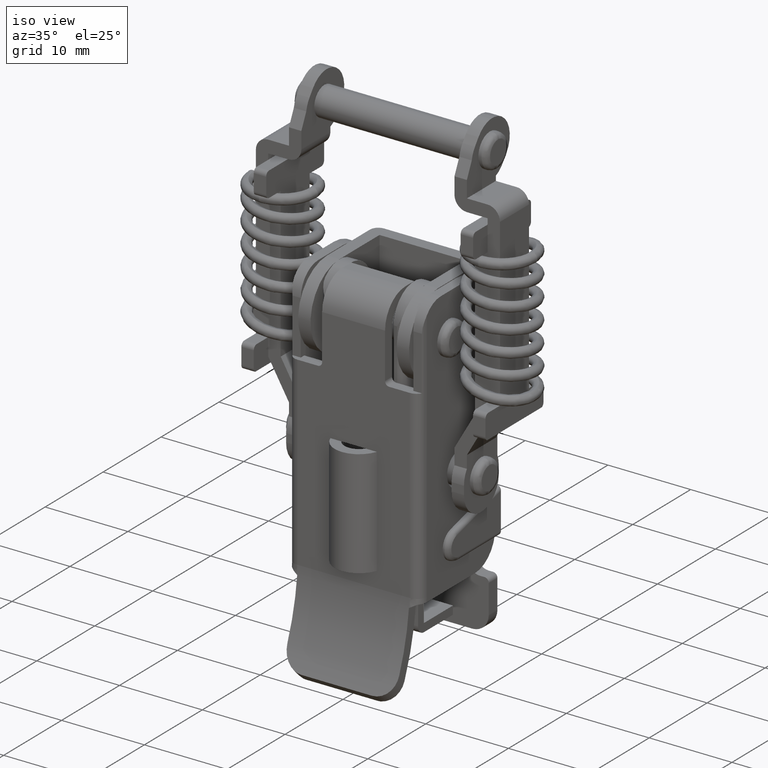
[diagram: clean part render]
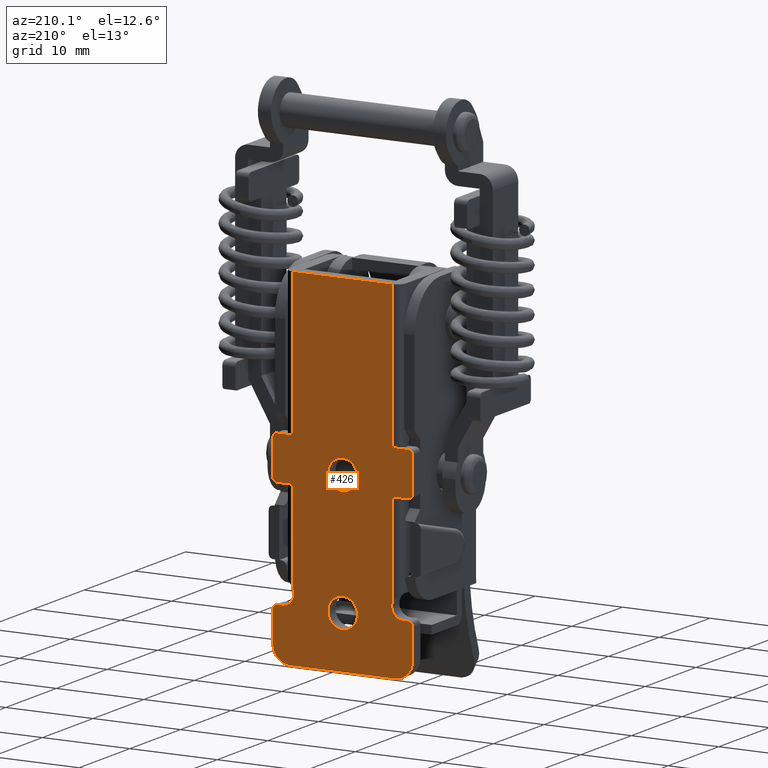
[diagram: tour spotlight — one face highlighted and labeled with its STEP entity id]
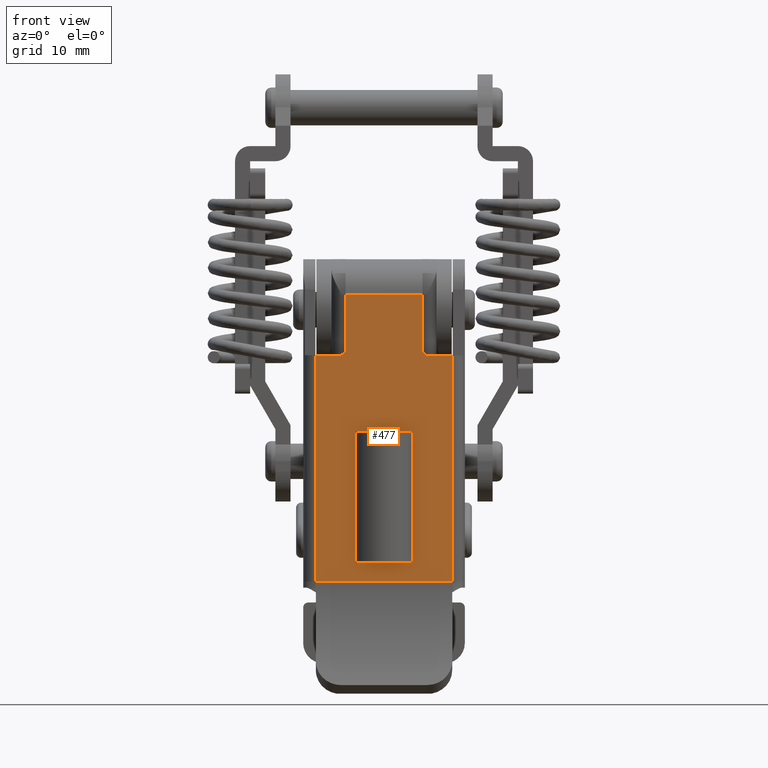
[diagram: tour spotlight — one face highlighted and labeled with its STEP entity id]
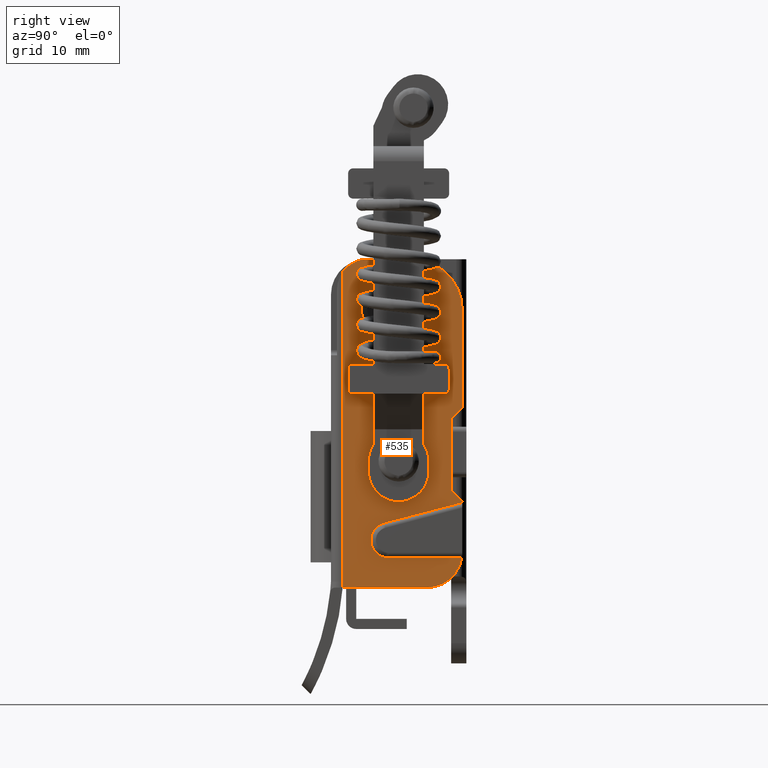
[diagram: tour spotlight — one face highlighted and labeled with its STEP entity id]
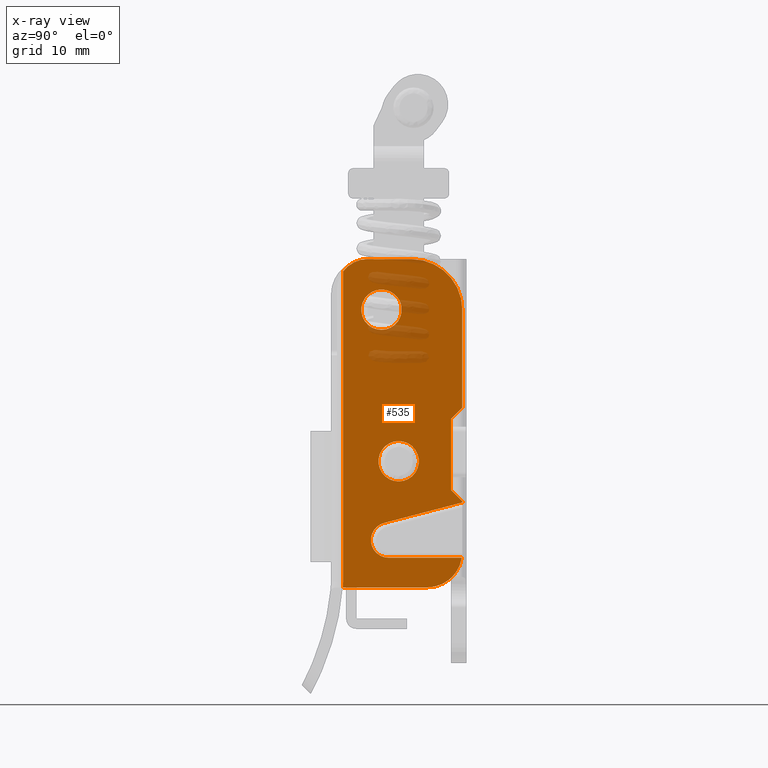
[diagram: x-ray of the same camera — body ghosted, this tour face saturated]
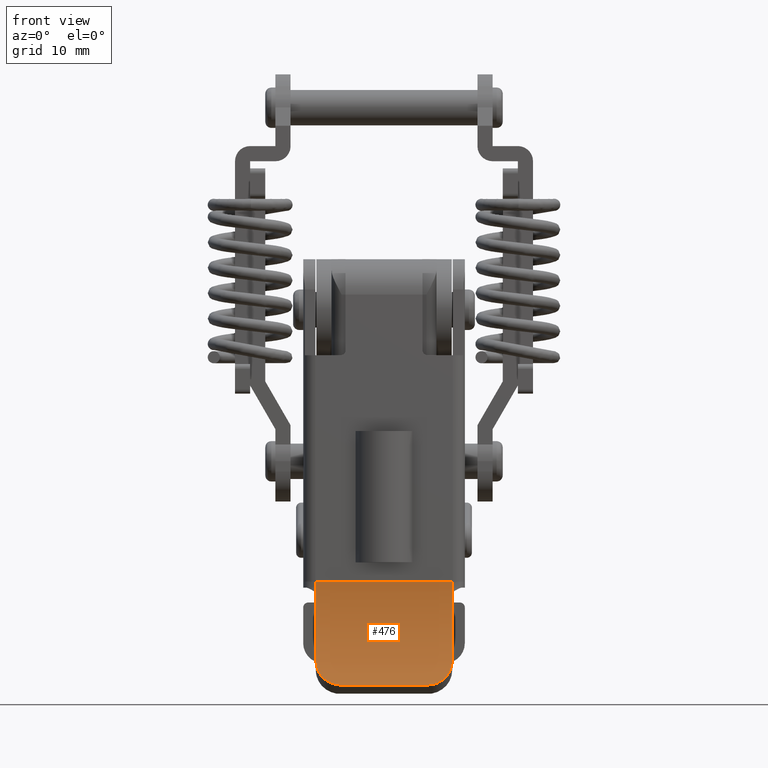
[diagram: tour spotlight — one face highlighted and labeled with its STEP entity id]
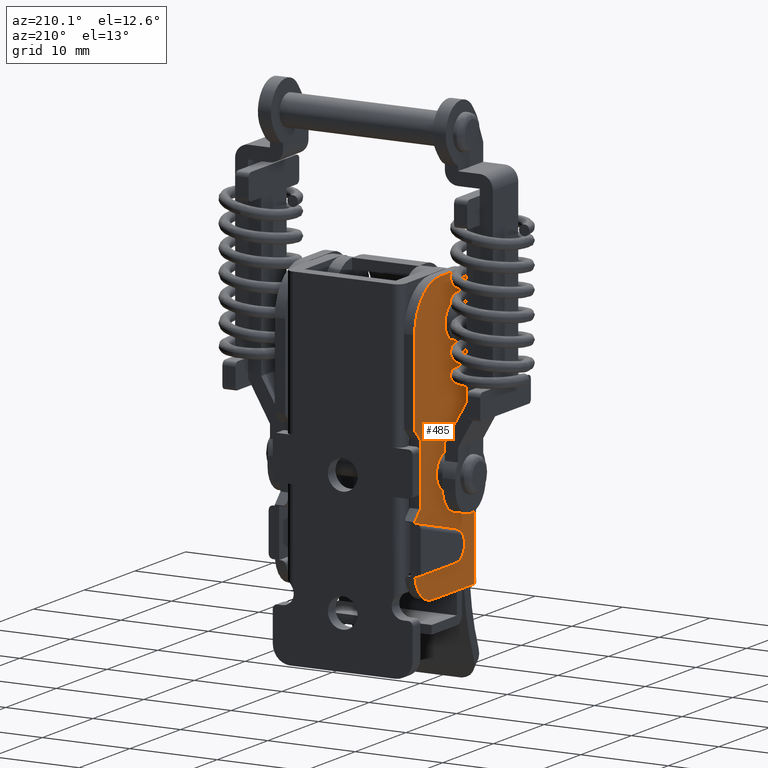
[diagram: tour spotlight — one face highlighted and labeled with its STEP entity id]
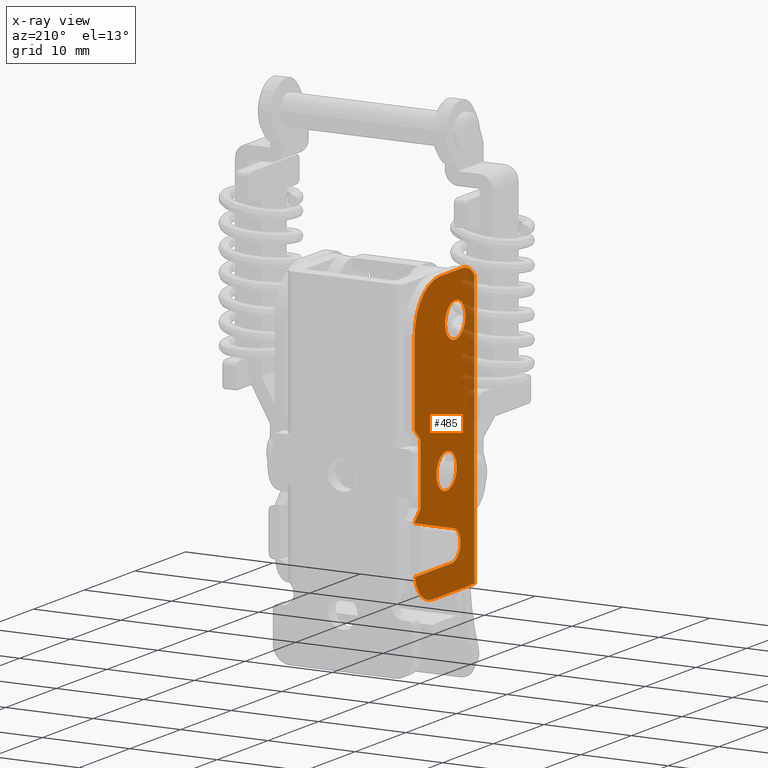
[diagram: x-ray of the same camera — body ghosted, this tour face saturated]
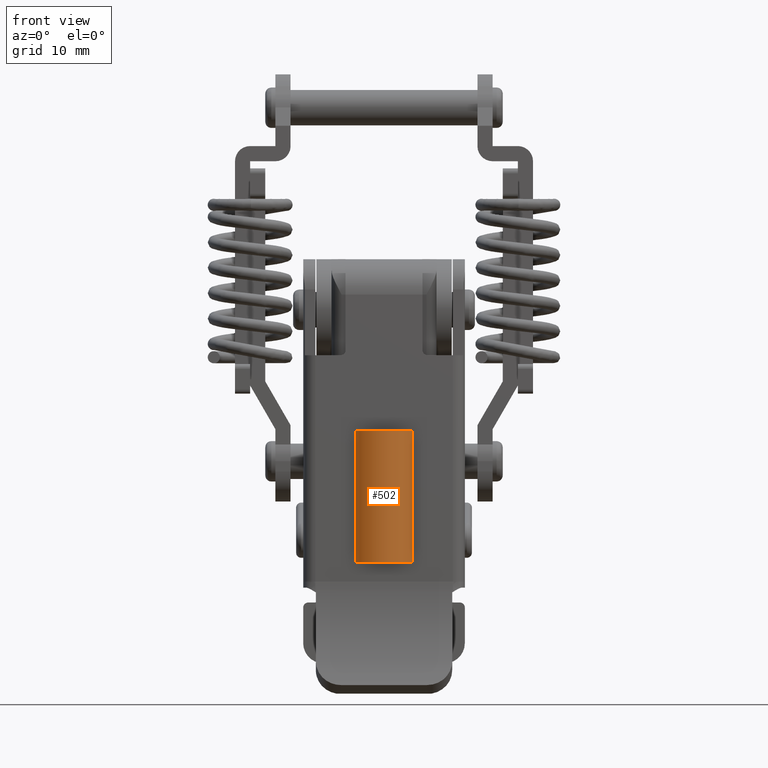
[diagram: tour spotlight — one face highlighted and labeled with its STEP entity id]
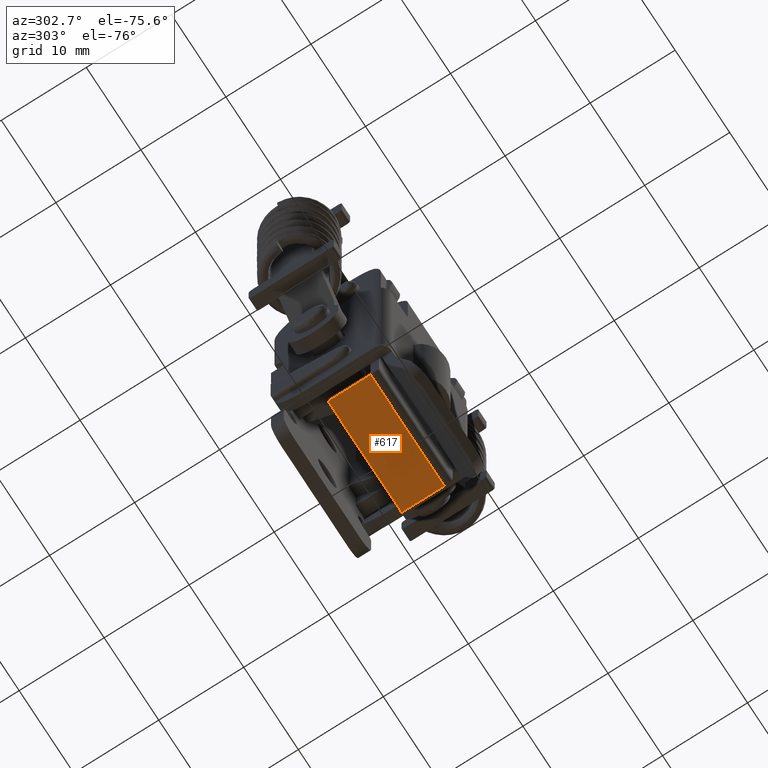
[diagram: tour spotlight — one face highlighted and labeled with its STEP entity id]
A machine part: a face-by-face anatomy tour. The part has 386 B-rep faces; the first image is the clean iso view, then the 7 largest visible faces are spotlighted one at a time (largest first), each with its STEP entity span.

Face 1 — auxiliary view, entity #426. In plain terms, the highlighted planar face has unit normal (0, 1, 0).
Definition (entity closure, byte-faithful):
#426=ADVANCED_FACE('',(#2227,#2228,#2229),#2226,.T.);
#2226=PLANE('',#5354);
#2227=FACE_OUTER_BOUND('',#5355,.T.);
#2228=FACE_BOUND('',#5356,.T.);
#2229=FACE_BOUND('',#5357,.T.);
#5351=CARTESIAN_POINT('',(-9.60000000000E+00,0.00000000000E+00,-4.40000000002E+01));
#5352=DIRECTION('',(-0.00000000000E+00,1.00000000000E+00,0.00000000000E+00));
#5353=DIRECTION('',(0.00000000000E+00,0.00000000000E+00,1.00000000000E+00));
#5354=AXIS2_PLACEMENT_3D('',#5351,#5352,#5353);
#5355=EDGE_LOOP('',(#8689,#8690,#8691,#8692,#8693,#8694,#8695,#8696,#8697,#8698,#8699,#8700,#8701,#8702,#8703,#8704,#8705,#8706,#8707,#8708,#8709,#8710,#8711,#8712,#8713,#8714));
#5356=EDGE_LOOP('',(#8715,#8716,#8717));
#5357=EDGE_LOOP('',(#8718,#8719,#8720));
#8689=ORIENTED_EDGE('',*,*,#10286,.T.);
#8690=ORIENTED_EDGE('',*,*,#10188,.T.);
#8691=ORIENTED_EDGE('',*,*,#10281,.T.);
#8692=ORIENTED_EDGE('',*,*,#10192,.T.);
#8693=ORIENTED_EDGE('',*,*,#10301,.T.);
#8694=ORIENTED_EDGE('',*,*,#10303,.F.);
#8695=ORIENTED_EDGE('',*,*,#10305,.T.);
#8696=ORIENTED_EDGE('',*,*,#10306,.F.);
#8697=ORIENTED_EDGE('',*,*,#10307,.T.);
#8698=ORIENTED_EDGE('',*,*,#10184,.T.);
#8699=ORIENTED_EDGE('',*,*,#10308,.T.);
#8700=ORIENTED_EDGE('',*,*,#10309,.T.);
#8701=ORIENTED_EDGE('',*,*,#10310,.F.);
#8702=ORIENTED_EDGE('',*,*,#10311,.T.);
#8703=ORIENTED_EDGE('',*,*,#10312,.F.);
#8704=ORIENTED_EDGE('',*,*,#10313,.T.);
#8705=ORIENTED_EDGE('',*,*,#10314,.F.);
#8706=ORIENTED_EDGE('',*,*,#10315,.T.);
#8707=ORIENTED_EDGE('',*,*,#10316,.F.);
#8708=ORIENTED_EDGE('',*,*,#10317,.T.);
#8709=ORIENTED_EDGE('',*,*,#10299,.T.);
#8710=ORIENTED_EDGE('',*,*,#10180,.T.);
#8711=ORIENTED_EDGE('',*,*,#10294,.T.);
#8712=ORIENTED_EDGE('',*,*,#10292,.F.);
#8713=ORIENTED_EDGE('',*,*,#10290,.T.);
#8714=ORIENTED_EDGE('',*,*,#10288,.F.);
#8715=ORIENTED_EDGE('',*,*,#10318,.T.);
#8716=ORIENTED_EDGE('',*,*,#10319,.T.);
#8717=ORIENTED_EDGE('',*,*,#10320,.T.);
#8718=ORIENTED_EDGE('',*,*,#10321,.T.);
#8719=ORIENTED_EDGE('',*,*,#10322,.T.);
#8720=ORIENTED_EDGE('',*,*,#10323,.T.);
#10180=EDGE_CURVE('',#13067,#13081,#13088,.T.);
#10184=EDGE_CURVE('',#13095,#13109,#13116,.T.);
#10188=EDGE_CURVE('',#13123,#13137,#13144,.T.);
#10192=EDGE_CURVE('',#13151,#13165,#13172,.T.);
#10281=EDGE_CURVE('',#13137,#13151,#13778,.T.);
#10286=EDGE_CURVE('',#13810,#13123,#13811,.T.);
#10288=EDGE_CURVE('',#13810,#13823,#13824,.T.);
#10290=EDGE_CURVE('',#13836,#13823,#13837,.T.);
#10292=EDGE_CURVE('',#13836,#13849,#13850,.T.);
#10294=EDGE_CURVE('',#13081,#13849,#13862,.T.);
#10299=EDGE_CURVE('',#13894,#13067,#13895,.T.);
#10301=EDGE_CURVE('',#13165,#13907,#13908,.T.);
#10303=EDGE_CURVE('',#13920,#13907,#13921,.T.);
#10305=EDGE_CURVE('',#13920,#13933,#13934,.T.);
#10306=EDGE_CURVE('',#13940,#13933,#13941,.T.);
#10307=EDGE_CURVE('',#13940,#13095,#13947,.T.);
#10308=EDGE_CURVE('',#13109,#13953,#13954,.T.);
#10309=EDGE_CURVE('',#13953,#13960,#13961,.T.);
#10310=EDGE_CURVE('',#13967,#13960,#13968,.T.);
#10311=EDGE_CURVE('',#13967,#13974,#13975,.T.);
#10312=EDGE_CURVE('',#13981,#13974,#13982,.T.);
#10313=EDGE_CURVE('',#13981,#13988,#13989,.T.);
#10314=EDGE_CURVE('',#13995,#13988,#13996,.T.);
#10315=EDGE_CURVE('',#13995,#14002,#14003,.T.);
#10316=EDGE_CURVE('',#14009,#14002,#14010,.T.);
#10317=EDGE_CURVE('',#14009,#13894,#14016,.T.);
#10318=EDGE_CURVE('',#14022,#14023,#14024,.T.);
#10319=EDGE_CURVE('',#14023,#14030,#14031,.T.);
#10320=EDGE_CURVE('',#14030,#14022,#14037,.T.);
#10321=EDGE_CURVE('',#14043,#14044,#14045,.T.);
#10322=EDGE_CURVE('',#14044,#14051,#14052,.T.);
#10323=EDGE_CURVE('',#14051,#14043,#14058,.T.);
#13067=VERTEX_POINT('',#18874);
#13081=VERTEX_POINT('',#18891);
#13088=LINE('',#18896,#18897);
#13095=VERTEX_POINT('',#18900);
#13109=VERTEX_POINT('',#18909);
#13116=LINE('',#18922,#18923);
#13123=VERTEX_POINT('',#18926);
#13137=VERTEX_POINT('',#18935);
#13144=LINE('',#18940,#18941);
#13151=VERTEX_POINT('',#18944);
#13165=VERTEX_POINT('',#18953);
#13172=LINE('',#18958,#18959);
#13778=LINE('',#19333,#19334);
#13810=VERTEX_POINT('',#19352);
#13811=LINE('',#19353,#19354);
#13823=VERTEX_POINT('',#19359);
#13824=CIRCLE('',#19363,5.00000000000E-01);
#13836=VERTEX_POINT('',#19367);
#13837=LINE('',#19368,#19369);
#13849=VERTEX_POINT('',#19374);
#13850=CIRCLE('',#19378,5.00000000000E-01);
#13862=LINE('',#19382,#19383);
#13894=VERTEX_POINT('',#19401);
#13895=CIRCLE('',#19405,1.30000000000E+00);
#13907=VERTEX_POINT('',#19409);
#13908=LINE('',#19410,#19411);
#13920=VERTEX_POINT('',#19416);
#13921=CIRCLE('',#19420,5.00000000000E-01);
#13933=VERTEX_POINT('',#19424);
#13934=LINE('',#19425,#19426);
#13940=VERTEX_POINT('',#19428);
#13941=CIRCLE('',#19432,5.00000000000E-01);
#13947=LINE('',#19433,#19434);
#13953=VERTEX_POINT('',#19436);
#13954=CIRCLE('',#19440,1.30000000000E+00);
#13960=VERTEX_POINT('',#19441);
#13961=LINE('',#19442,#19443);
#13967=VERTEX_POINT('',#19445);
#13968=CIRCLE('',#19449,5.00000000000E-01);
#13974=VERTEX_POINT('',#19450);
#13975=LINE('',#19451,#19452);
#13981=VERTEX_POINT('',#19454);
#13982=CIRCLE('',#19458,2.00000000000E+00);
#13988=VERTEX_POINT('',#19459);
#13989=LINE('',#19460,#19461);
#13995=VERTEX_POINT('',#19463);
#13996=CIRCLE('',#19467,2.00000000000E+00);
#14002=VERTEX_POINT('',#19468);
#14003=LINE('',#19469,#19470);
#14009=VERTEX_POINT('',#19472);
#14010=CIRCLE('',#19476,5.00000000000E-01);
#14016=LINE('',#19477,#19478);
#14022=VERTEX_POINT('',#19480);
#14023=VERTEX_POINT('',#19481);
#14024=CIRCLE('',#19485,1.70000000000E+00);
#14030=VERTEX_POINT('',#19486);
#14031=CIRCLE('',#19490,1.70000000000E+00);
#14037=CIRCLE('',#19494,1.70000000000E+00);
#14043=VERTEX_POINT('',#19495);
#14044=VERTEX_POINT('',#19496);
#14045=CIRCLE('',#19500,1.70000000000E+00);
#14051=VERTEX_POINT('',#19501);
#14052=CIRCLE('',#19505,1.70000000000E+00);
#14058=CIRCLE('',#19509,1.70000000000E+00);
#18874=CARTESIAN_POINT('',(-5.70000000000E+00,0.00000000000E+00,-3.21775919430E+01));
#18891=CARTESIAN_POINT('',(-5.70000000000E+00,0.00000000000E+00,-2.15775919430E+01));
#18896=CARTESIAN_POINT('',(-5.70000000000E+00,0.00000000000E+00,-3.21775919430E+01));
#18897=VECTOR('',#18898,1.06000000000E+01);
#18898=DIRECTION('',(0.00000000000E+00,0.00000000000E+00,1.00000000000E+00));
#18900=CARTESIAN_POINT('',(5.70000000000E+00,0.00000000000E+00,-2.15775919430E+01));
#18909=CARTESIAN_POINT('',(5.70000000000E+00,0.00000000000E+00,-3.21775919430E+01));
#18922=CARTESIAN_POINT('',(5.70000000000E+00,0.00000000000E+00,-2.15775919430E+01));
#18923=VECTOR('',#18924,1.06000000000E+01);
#18924=DIRECTION('',(0.00000000000E+00,0.00000000000E+00,-1.00000000000E+00));
#18926=CARTESIAN_POINT('',(-5.70000000000E+00,0.00000000000E+00,-1.65775919430E+01));
#18935=CARTESIAN_POINT('',(-5.70000000000E+00,0.00000000000E+00,0.00000000000E+00));
#18940=CARTESIAN_POINT('',(-5.70000000000E+00,0.00000000000E+00,-1.65775919430E+01));
#18941=VECTOR('',#18942,1.65775919430E+01);
#18942=DIRECTION('',(0.00000000000E+00,0.00000000000E+00,1.00000000000E+00));
#18944=CARTESIAN_POINT('',(5.70000000000E+00,0.00000000000E+00,0.00000000000E+00));
#18953=CARTESIAN_POINT('',(5.70000000000E+00,0.00000000000E+00,-1.65775919430E+01));
#18958=CARTESIAN_POINT('',(5.70000000000E+00,0.00000000000E+00,0.00000000000E+00));
#18959=VECTOR('',#18960,1.65775919430E+01);
#18960=DIRECTION('',(0.00000000000E+00,0.00000000000E+00,-1.00000000000E+00));
#19333=CARTESIAN_POINT('',(-5.70000000000E+00,0.00000000000E+00,0.00000000000E+00));
#19334=VECTOR('',#19335,1.14000000000E+01);
#19335=DIRECTION('',(1.00000000000E+00,0.00000000000E+00,0.00000000000E+00));
#19352=CARTESIAN_POINT('',(-7.50000000000E+00,0.00000000000E+00,-1.65775919430E+01));
#19353=CARTESIAN_POINT('',(-7.50000000000E+00,0.00000000000E+00,-1.65775919430E+01));
#19354=VECTOR('',#19355,1.80000000000E+00);
#19355=DIRECTION('',(1.00000000000E+00,0.00000000000E+00,0.00000000000E+00));
#19359=CARTESIAN_POINT('',(-8.00000000000E+00,0.00000000000E+00,-1.70775919430E+01));
#19360=CARTESIAN_POINT('',(-7.50000000000E+00,0.00000000000E+00,-1.70775919430E+01));
#19361=DIRECTION('',(0.00000000000E+00,-1.00000000000E+00,0.00000000000E+00));
#19362=DIRECTION('',(-0.00000000000E+00,-0.00000000000E+00,-1.00000000000E+00));
#19363=AXIS2_PLACEMENT_3D('',#19360,#19361,#19362);
#19367=CARTESIAN_POINT('',(-8.00000000000E+00,0.00000000000E+00,-2.10775919430E+01));
#19368=CARTESIAN_POINT('',(-8.00000000000E+00,0.00000000000E+00,-2.10775919430E+01));
#19369=VECTOR('',#19370,4.00000000000E+00);
#19370=DIRECTION('',(0.00000000000E+00,0.00000000000E+00,1.00000000000E+00));
#19374=CARTESIAN_POINT('',(-7.50000000000E+00,0.00000000000E+00,-2.15775919430E+01));
#19375=CARTESIAN_POINT('',(-7.50000000000E+00,0.00000000000E+00,-2.10775919430E+01));
#19376=DIRECTION('',(0.00000000000E+00,-1.00000000000E+00,0.00000000000E+00));
#19377=DIRECTION('',(-0.00000000000E+00,-0.00000000000E+00,-1.00000000000E+00));
#19378=AXIS2_PLACEMENT_3D('',#19375,#19376,#19377);
#19382=CARTESIAN_POINT('',(-5.70000000000E+00,0.00000000000E+00,-2.15775919430E+01));
#19383=VECTOR('',#19384,1.80000000000E+00);
#19384=DIRECTION('',(-1.00000000000E+00,0.00000000000E+00,0.00000000000E+00));
#19401=CARTESIAN_POINT('',(-6.90000000000E+00,0.00000000000E+00,-3.39775919430E+01));
#19402=CARTESIAN_POINT('',(-6.90000000000E+00,0.00000000000E+00,-3.26775919430E+01));
#19403=DIRECTION('',(0.00000000000E+00,-1.00000000000E+00,0.00000000000E+00));
#19404=DIRECTION('',(-0.00000000000E+00,-0.00000000000E+00,-1.00000000000E+00));
#19405=AXIS2_PLACEMENT_3D('',#19402,#19403,#19404);
#19409=CARTESIAN_POINT('',(7.50000000000E+00,0.00000000000E+00,-1.65775919430E+01));
#19410=CARTESIAN_POINT('',(5.70000000000E+00,0.00000000000E+00,-1.65775919430E+01));
#19411=VECTOR('',#19412,1.80000000000E+00);
#19412=DIRECTION('',(1.00000000000E+00,0.00000000000E+00,0.00000000000E+00));
#19416=CARTESIAN_POINT('',(8.00000000000E+00,0.00000000000E+00,-1.70775919430E+01));
#19417=CARTESIAN_POINT('',(7.50000000000E+00,0.00000000000E+00,-1.70775919430E+01));
#19418=DIRECTION('',(0.00000000000E+00,-1.00000000000E+00,0.00000000000E+00));
#19419=DIRECTION('',(-0.00000000000E+00,-0.00000000000E+00,-1.00000000000E+00));
#19420=AXIS2_PLACEMENT_3D('',#19417,#19418,#19419);
#19424=CARTESIAN_POINT('',(8.00000000000E+00,0.00000000000E+00,-2.10775919430E+01));
#19425=CARTESIAN_POINT('',(8.00000000000E+00,0.00000000000E+00,-1.70775919430E+01));
#19426=VECTOR('',#19427,4.00000000000E+00);
#19427=DIRECTION('',(0.00000000000E+00,0.00000000000E+00,-1.00000000000E+00));
#19428=CARTESIAN_POINT('',(7.50000000000E+00,0.00000000000E+00,-2.15775919430E+01));
#19429=CARTESIAN_POINT('',(7.50000000000E+00,0.00000000000E+00,-2.10775919430E+01));
#19430=DIRECTION('',(0.00000000000E+00,-1.00000000000E+00,0.00000000000E+00));
#19431=DIRECTION('',(-0.00000000000E+00,-0.00000000000E+00,-1.00000000000E+00));
#19432=AXIS2_PLACEMENT_3D('',#19429,#19430,#19431);
#19433=CARTESIAN_POINT('',(7.50000000000E+00,0.00000000000E+00,-2.15775919430E+01));
#19434=VECTOR('',#19435,1.80000000000E+00);
#19435=DIRECTION('',(-1.00000000000E+00,0.00000000000E+00,0.00000000000E+00));
#19436=CARTESIAN_POINT('',(6.90000000000E+00,0.00000000000E+00,-3.39775919430E+01));
#19437=CARTESIAN_POINT('',(6.90000000000E+00,0.00000000000E+00,-3.26775919430E+01));
#19438=DIRECTION('',(0.00000000000E+00,-1.00000000000E+00,0.00000000000E+00));
#19439=DIRECTION('',(-0.00000000000E+00,-0.00000000000E+00,-1.00000000000E+00));
#19440=AXIS2_PLACEMENT_3D('',#19437,#19438,#19439);
#19441=CARTESIAN_POINT('',(7.50000000000E+00,0.00000000000E+00,-3.39775919430E+01));
#19442=CARTESIAN_POINT('',(6.90000000000E+00,0.00000000000E+00,-3.39775919430E+01));
#19443=VECTOR('',#19444,6.00000000000E-01);
#19444=DIRECTION('',(1.00000000000E+00,0.00000000000E+00,0.00000000000E+00));
#19445=CARTESIAN_POINT('',(8.00000000000E+00,0.00000000000E+00,-3.44775919430E+01));
#19446=CARTESIAN_POINT('',(7.50000000000E+00,0.00000000000E+00,-3.44775919430E+01));
#19447=DIRECTION('',(0.00000000000E+00,-1.00000000000E+00,0.00000000000E+00));
#19448=DIRECTION('',(-0.00000000000E+00,-0.00000000000E+00,-1.00000000000E+00));
#19449=AXIS2_PLACEMENT_3D('',#19446,#19447,#19448);
#19450=CARTESIAN_POINT('',(8.00000000000E+00,0.00000000000E+00,-3.80000000000E+01));
#19451=CARTESIAN_POINT('',(8.00000000000E+00,0.00000000000E+00,-3.44775919430E+01));
#19452=VECTOR('',#19453,3.52240805700E+00);
#19453=DIRECTION('',(0.00000000000E+00,0.00000000000E+00,-1.00000000000E+00));
#19454=CARTESIAN_POINT('',(6.00000000001E+00,0.00000000000E+00,-4.00000000000E+01));
#19455=CARTESIAN_POINT('',(6.00000000000E+00,0.00000000000E+00,-3.80000000000E+01));
#19456=DIRECTION('',(0.00000000000E+00,-1.00000000000E+00,0.00000000000E+00));
#19457=DIRECTION('',(-0.00000000000E+00,-0.00000000000E+00,-1.00000000000E+00));
#19458=AXIS2_PLACEMENT_3D('',#19455,#19456,#19457);
#19459=CARTESIAN_POINT('',(-5.99999999999E+00,0.00000000000E+00,-4.00000000002E+01));
#19460=CARTESIAN_POINT('',(6.00000000001E+00,0.00000000000E+00,-4.00000000001E+01));
#19461=VECTOR('',#19462,1.20000000000E+01);
#19462=DIRECTION('',(-1.00000000000E+00,0.00000000000E+00,-3.06717614270E-12));
#19463=CARTESIAN_POINT('',(-8.00000000000E+00,0.00000000000E+00,-3.80000000000E+01));
#19464=CARTESIAN_POINT('',(-6.00000000000E+00,0.00000000000E+00,-3.80000000000E+01));
#19465=DIRECTION('',(0.00000000000E+00,-1.00000000000E+00,-0.00000000000E+00));
#19466=DIRECTION('',(3.06599190480E-12,0.00000000000E+00,-1.00000000000E+00));
#19467=AXIS2_PLACEMENT_3D('',#19464,#19465,#19466);
#19468=CARTESIAN_POINT('',(-8.00000000000E+00,0.00000000000E+00,-3.44775919430E+01));
#19469=CARTESIAN_POINT('',(-8.00000000000E+00,0.00000000000E+00,-3.80000000000E+01));
#19470=VECTOR('',#19471,3.52240805700E+00);
#19471=DIRECTION('',(0.00000000000E+00,0.00000000000E+00,1.00000000000E+00));
#19472=CARTESIAN_POINT('',(-7.50000000000E+00,0.00000000000E+00,-3.39775919430E+01));
#19473=CARTESIAN_POINT('',(-7.50000000000E+00,0.00000000000E+00,-3.44775919430E+01));
#19474=DIRECTION('',(0.00000000000E+00,-1.00000000000E+00,0.00000000000E+00));
#19475=DIRECTION('',(-0.00000000000E+00,-0.00000000000E+00,-1.00000000000E+00));
#19476=AXIS2_PLACEMENT_3D('',#19473,#19474,#19475);
#19477=CARTESIAN_POINT('',(-7.50000000000E+00,0.00000000000E+00,-3.39775919430E+01));
#19478=VECTOR('',#19479,6.00000000000E-01);
#19479=DIRECTION('',(1.00000000000E+00,0.00000000000E+00,0.00000000000E+00));
#19480=CARTESIAN_POINT('',(1.70000000000E+00,0.00000000000E+00,-1.99975919430E+01));
#19481=CARTESIAN_POINT('',(-1.76456702639E-04,0.00000000000E+00,-1.82975919522E+01));
#19482=CARTESIAN_POINT('',(0.00000000000E+00,0.00000000000E+00,-1.99975919430E+01));
#19483=DIRECTION('',(0.00000000000E+00,-1.00000000000E+00,0.00000000000E+00));
#19484=DIRECTION('',(1.00000000000E+00,0.00000000000E+00,-1.22460635382E-16));
#19485=AXIS2_PLACEMENT_3D('',#19482,#19483,#19484);
#19486=CARTESIAN_POINT('',(9.27261829425E-06,0.00000000000E+00,-2.16975919430E+01));
#19487=CARTESIAN_POINT('',(0.00000000000E+00,0.00000000000E+00,-1.99975919430E+01));
#19488=DIRECTION('',(0.00000000000E+00,-1.00000000000E+00,0.00000000000E+00));
#19489=DIRECTION('',(1.00000000000E+00,0.00000000000E+00,-1.22460635382E-16));
#19490=AXIS2_PLACEMENT_3D('',#19487,#19488,#19489);
#19491=CARTESIAN_POINT('',(0.00000000000E+00,0.00000000000E+00,-1.99975919430E+01));
#19492=DIRECTION('',(0.00000000000E+00,-1.00000000000E+00,0.00000000000E+00));
#19493=DIRECTION('',(1.00000000000E+00,0.00000000000E+00,-1.22460635382E-16));
#19494=AXIS2_PLACEMENT_3D('',#19491,#19492,#19493);
#19495=CARTESIAN_POINT('',(1.70000000000E+00,0.00000000000E+00,-3.40000000000E+01));
#19496=CARTESIAN_POINT('',(-1.76456702639E-04,0.00000000000E+00,-3.23000000092E+01));
#19497=CARTESIAN_POINT('',(0.00000000000E+00,0.00000000000E+00,-3.40000000000E+01));
#19498=DIRECTION('',(0.00000000000E+00,-1.00000000000E+00,0.00000000000E+00));
#19499=DIRECTION('',(1.00000000000E+00,0.00000000000E+00,-1.22460635382E-16));
#19500=AXIS2_PLACEMENT_3D('',#19497,#19498,#19499);
#19501=CARTESIAN_POINT('',(9.27261829425E-06,0.00000000000E+00,-3.57000000000E+01));
#19502=CARTESIAN_POINT('',(0.00000000000E+00,0.00000000000E+00,-3.40000000000E+01));
#19503=DIRECTION('',(0.00000000000E+00,-1.00000000000E+00,0.00000000000E+00));
#19504=DIRECTION('',(1.00000000000E+00,0.00000000000E+00,-1.22460635382E-16));
#19505=AXIS2_PLACEMENT_3D('',#19502,#19503,#19504);
#19506=CARTESIAN_POINT('',(0.00000000000E+00,0.00000000000E+00,-3.40000000000E+01));
#19507=DIRECTION('',(0.00000000000E+00,-1.00000000000E+00,0.00000000000E+00));
#19508=DIRECTION('',(1.00000000000E+00,0.00000000000E+00,-1.22460635382E-16));
#19509=AXIS2_PLACEMENT_3D('',#19506,#19507,#19508);

Face 2 — front view, entity #477. In plain terms, the highlighted planar face has unit normal (0, 1, 0).
Definition (entity closure, byte-faithful):
#477=ADVANCED_FACE('',(#2743,#2744),#2742,.F.);
#2742=PLANE('',#5626);
#2743=FACE_OUTER_BOUND('',#5627,.T.);
#2744=FACE_BOUND('',#5628,.T.);
#5623=CARTESIAN_POINT('',(-8.16000000000E+00,2.90000000000E+00,8.25758134314E+00));
#5624=DIRECTION('',(-0.00000000000E+00,1.00000000000E+00,0.00000000000E+00));
#5625=DIRECTION('',(0.00000000000E+00,-0.00000000000E+00,1.00000000000E+00));
#5626=AXIS2_PLACEMENT_3D('',#5623,#5624,#5625);
#5627=EDGE_LOOP('',(#8984,#8985,#8986,#8987,#8988,#8989,#8990,#8991,#8992,#8993));
#5628=EDGE_LOOP('',(#8994,#8995,#8996,#8997,#8998,#8999,#9000,#9001));
#8984=ORIENTED_EDGE('',*,*,#10450,.F.);
#8985=ORIENTED_EDGE('',*,*,#10359,.T.);
#8986=ORIENTED_EDGE('',*,*,#10453,.T.);
#8987=ORIENTED_EDGE('',*,*,#10454,.T.);
#8988=ORIENTED_EDGE('',*,*,#10412,.T.);
#8989=ORIENTED_EDGE('',*,*,#10407,.T.);
#8990=ORIENTED_EDGE('',*,*,#10411,.F.);
#8991=ORIENTED_EDGE('',*,*,#10455,.T.);
#8992=ORIENTED_EDGE('',*,*,#10456,.T.);
#8993=ORIENTED_EDGE('',*,*,#10457,.T.);
#8994=ORIENTED_EDGE('',*,*,#10458,.F.);
#8995=ORIENTED_EDGE('',*,*,#10459,.T.);
#8996=ORIENTED_EDGE('',*,*,#10460,.F.);
#8997=ORIENTED_EDGE('',*,*,#10461,.T.);
#8998=ORIENTED_EDGE('',*,*,#10462,.T.);
#8999=ORIENTED_EDGE('',*,*,#10463,.F.);
#9000=ORIENTED_EDGE('',*,*,#10464,.F.);
#9001=ORIENTED_EDGE('',*,*,#10465,.F.);
#10359=EDGE_CURVE('',#14283,#14275,#14284,.T.);
#10407=EDGE_CURVE('',#14610,#14603,#14611,.T.);
#10411=EDGE_CURVE('',#14630,#14603,#14637,.T.);
#10412=EDGE_CURVE('',#14643,#14610,#14644,.T.);
#10450=EDGE_CURVE('',#14283,#14240,#14899,.T.);
#10453=EDGE_CURVE('',#14275,#14917,#14918,.T.);
#10454=EDGE_CURVE('',#14917,#14643,#14924,.T.);
#10455=EDGE_CURVE('',#14630,#14930,#14931,.T.);
#10456=EDGE_CURVE('',#14930,#14937,#14938,.T.);
#10457=EDGE_CURVE('',#14937,#14240,#14944,.T.);
#10458=EDGE_CURVE('',#14950,#14951,#14952,.T.);
#10459=EDGE_CURVE('',#14950,#14958,#14959,.T.);
#10460=EDGE_CURVE('',#14965,#14958,#14966,.T.);
#10461=EDGE_CURVE('',#14965,#14972,#14973,.T.);
#10462=EDGE_CURVE('',#14972,#14979,#14980,.T.);
#10463=EDGE_CURVE('',#14986,#14979,#14987,.T.);
#10464=EDGE_CURVE('',#14993,#14986,#14994,.T.);
#10465=EDGE_CURVE('',#14951,#14993,#15000,.T.);
#14240=VERTEX_POINT('',#19587);
#14275=VERTEX_POINT('',#19622);
#14283=VERTEX_POINT('',#19628);
#14284=LINE('',#19629,#19630);
#14603=VERTEX_POINT('',#19830);
#14610=VERTEX_POINT('',#19835);
#14611=LINE('',#19836,#19837);
#14630=VERTEX_POINT('',#19847);
#14637=LINE('',#19851,#19852);
#14643=VERTEX_POINT('',#19854);
#14644=LINE('',#19855,#19856);
#14899=LINE('',#20045,#20046);
#14917=VERTEX_POINT('',#20069);
#14918=LINE('',#20070,#20071);
#14924=CIRCLE('',#20076,5.00000000000E-01);
#14930=VERTEX_POINT('',#20077);
#14931=CIRCLE('',#20081,5.00000000000E-01);
#14937=VERTEX_POINT('',#20082);
#14938=LINE('',#20083,#20084);
#14944=LINE('',#20086,#20087);
#14950=VERTEX_POINT('',#20089);
#14951=VERTEX_POINT('',#20090);
#14952=LINE('',#20091,#20092);
#14958=VERTEX_POINT('',#20094);
#14959=LINE('',#20095,#20096);
#14965=VERTEX_POINT('',#20098);
#14966=LINE('',#20099,#20100);
#14972=VERTEX_POINT('',#20102);
#14973=LINE('',#20103,#20104);
#14979=VERTEX_POINT('',#20106);
#14980=LINE('',#20107,#20108);
#14986=VERTEX_POINT('',#20110);
#14987=LINE('',#20111,#20112);
#14993=VERTEX_POINT('',#20114);
#14994=LINE('',#20115,#20116);
#15000=LINE('',#20118,#20119);
#19587=CARTESIAN_POINT('',(-6.80000000000E+00,2.90000000000E+00,1.10978015392E+01));
#19622=CARTESIAN_POINT('',(6.80000000000E+00,2.90000000000E+00,3.35000035000E+01));
#19628=CARTESIAN_POINT('',(6.80000000000E+00,2.90000000000E+00,1.10978015392E+01));
#19629=CARTESIAN_POINT('',(6.80000000000E+00,2.90000000000E+00,1.10978015392E+01));
#19630=VECTOR('',#19631,2.24022019608E+01);
#19631=DIRECTION('',(0.00000000000E+00,0.00000000000E+00,1.00000000000E+00));
#19830=CARTESIAN_POINT('',(-3.80000000000E+00,2.90000000000E+00,3.95000035000E+01));
#19835=CARTESIAN_POINT('',(3.80000000000E+00,2.90000000000E+00,3.95000035000E+01));
#19836=CARTESIAN_POINT('',(3.80000000000E+00,2.90000000000E+00,3.95000035000E+01));
#19837=VECTOR('',#19838,7.60000000000E+00);
#19838=DIRECTION('',(-1.00000000000E+00,0.00000000000E+00,0.00000000000E+00));
#19847=CARTESIAN_POINT('',(-3.80000000000E+00,2.90000000000E+00,3.40000035000E+01));
#19851=CARTESIAN_POINT('',(-3.80000000000E+00,2.90000000000E+00,3.40000035000E+01));
#19852=VECTOR('',#19853,5.50000000000E+00);
#19853=DIRECTION('',(0.00000000000E+00,0.00000000000E+00,1.00000000000E+00));
#19854=CARTESIAN_POINT('',(3.80000000000E+00,2.90000000000E+00,3.40000035000E+01));
#19855=CARTESIAN_POINT('',(3.80000000000E+00,2.90000000000E+00,3.40000035000E+01));
#19856=VECTOR('',#19857,5.50000000000E+00);
#19857=DIRECTION('',(0.00000000000E+00,0.00000000000E+00,1.00000000000E+00));
#20045=CARTESIAN_POINT('',(6.80000000000E+00,2.90000000000E+00,1.10978015392E+01));
#20046=VECTOR('',#20047,1.36000000000E+01);
#20047=DIRECTION('',(-1.00000000000E+00,0.00000000000E+00,0.00000000000E+00));
#20069=CARTESIAN_POINT('',(4.30000000000E+00,2.90000000000E+00,3.35000035000E+01));
#20070=CARTESIAN_POINT('',(6.80000000000E+00,2.90000000000E+00,3.35000035000E+01));
#20071=VECTOR('',#20072,2.50000000000E+00);
#20072=DIRECTION('',(-1.00000000000E+00,0.00000000000E+00,0.00000000000E+00));
#20073=CARTESIAN_POINT('',(4.30000000000E+00,2.90000000000E+00,3.40000035000E+01));
#20074=DIRECTION('',(0.00000000000E+00,1.00000000000E+00,0.00000000000E+00));
#20075=DIRECTION('',(-0.00000000000E+00,0.00000000000E+00,-1.00000000000E+00));
#20076=AXIS2_PLACEMENT_3D('',#20073,#20074,#20075);
#20077=CARTESIAN_POINT('',(-4.30000000000E+00,2.90000000000E+00,3.35000035000E+01));
#20078=CARTESIAN_POINT('',(-4.30000000000E+00,2.90000000000E+00,3.40000035000E+01));
#20079=DIRECTION('',(-0.00000000000E+00,1.00000000000E+00,0.00000000000E+00));
#20080=DIRECTION('',(1.00000000000E+00,0.00000000000E+00,1.83690953073E-16));
#20081=AXIS2_PLACEMENT_3D('',#20078,#20079,#20080);
#20082=CARTESIAN_POINT('',(-6.80000000000E+00,2.90000000000E+00,3.35000035000E+01));
#20083=CARTESIAN_POINT('',(-4.30000000000E+00,2.90000000000E+00,3.35000035000E+01));
#20084=VECTOR('',#20085,2.50000000000E+00);
#20085=DIRECTION('',(-1.00000000000E+00,0.00000000000E+00,0.00000000000E+00));
#20086=CARTESIAN_POINT('',(-6.80000000000E+00,2.90000000000E+00,3.35000035000E+01));
#20087=VECTOR('',#20088,2.24022019608E+01);
#20088=DIRECTION('',(0.00000000000E+00,0.00000000000E+00,-1.00000000000E+00));
#20089=CARTESIAN_POINT('',(2.80976032385E+00,2.90000000000E+00,1.30000000000E+01));
#20090=CARTESIAN_POINT('',(2.80976032385E+00,2.90000000000E+00,2.60000000000E+01));
#20091=CARTESIAN_POINT('',(2.80976032385E+00,2.90000000000E+00,1.30000000000E+01));
#20092=VECTOR('',#20093,1.30000000000E+01);
#20093=DIRECTION('',(0.00000000000E+00,0.00000000000E+00,1.00000000000E+00));
#20094=CARTESIAN_POINT('',(1.48835564616E+00,2.90000000000E+00,1.30000000000E+01));
#20095=CARTESIAN_POINT('',(2.80976032385E+00,2.90000000000E+00,1.30000000000E+01));
#20096=VECTOR('',#20097,1.32140467769E+00);
#20097=DIRECTION('',(-1.00000000000E+00,0.00000000000E+00,0.00000000000E+00));
#20098=CARTESIAN_POINT('',(-1.48835564616E+00,2.90000000000E+00,1.30000000000E+01));
#20099=CARTESIAN_POINT('',(-1.48835564616E+00,2.90000000000E+00,1.30000000000E+01));
#20100=VECTOR('',#20101,2.97671129232E+00);
#20101=DIRECTION('',(1.00000000000E+00,0.00000000000E+00,0.00000000000E+00));
#20102=CARTESIAN_POINT('',(-2.80976032385E+00,2.90000000000E+00,1.30000000000E+01));
#20103=CARTESIAN_POINT('',(-1.48835564616E+00,2.90000000000E+00,1.30000000000E+01));
#20104=VECTOR('',#20105,1.32140467769E+00);
#20105=DIRECTION('',(-1.00000000000E+00,0.00000000000E+00,0.00000000000E+00));
#20106=CARTESIAN_POINT('',(-2.80976032385E+00,2.90000000000E+00,2.60000000000E+01));
#20107=CARTESIAN_POINT('',(-2.80976032385E+00,2.90000000000E+00,1.30000000000E+01));
#20108=VECTOR('',#20109,1.30000000000E+01);
#20109=DIRECTION('',(0.00000000000E+00,0.00000000000E+00,1.00000000000E+00));
#20110=CARTESIAN_POINT('',(-1.48835564616E+00,2.90000000000E+00,2.60000000000E+01));
#20111=CARTESIAN_POINT('',(-1.48835564616E+00,2.90000000000E+00,2.60000000000E+01));
#20112=VECTOR('',#20113,1.32140467769E+00);
#20113=DIRECTION('',(-1.00000000000E+00,0.00000000000E+00,0.00000000000E+00));
#20114=CARTESIAN_POINT('',(1.48835564616E+00,2.90000000000E+00,2.60000000000E+01));
#20115=CARTESIAN_POINT('',(1.48835564616E+00,2.90000000000E+00,2.60000000000E+01));
#20116=VECTOR('',#20117,2.97671129232E+00);
#20117=DIRECTION('',(-1.00000000000E+00,0.00000000000E+00,0.00000000000E+00));
#20118=CARTESIAN_POINT('',(2.80976032385E+00,2.90000000000E+00,2.60000000000E+01));
#20119=VECTOR('',#20120,1.32140467769E+00);
#20120=DIRECTION('',(-1.00000000000E+00,0.00000000000E+00,0.00000000000E+00));

Face 3 — right view, entity #535. An x-ray twin of the same camera follows (body ghosted, this face saturated) — the face is partly hidden behind the body. In plain terms, the highlighted planar face has unit normal (-1, 0, 0).
Definition (entity closure, byte-faithful):
#535=ADVANCED_FACE('',(#3330,#3331,#3332),#3329,.F.);
#3329=PLANE('',#6027);
#3330=FACE_OUTER_BOUND('',#6028,.T.);
#3331=FACE_BOUND('',#6029,.T.);
#3332=FACE_BOUND('',#6030,.T.);
#6024=CARTESIAN_POINT('',(8.00000000000E+00,2.87644541713E+00,7.25000350000E+00));
#6025=DIRECTION('',(-1.00000000000E+00,0.00000000000E+00,0.00000000000E+00));
#6026=DIRECTION('',(0.00000000000E+00,0.00000000000E+00,1.00000000000E+00));
#6027=AXIS2_PLACEMENT_3D('',#6024,#6025,#6026);
#6028=EDGE_LOOP('',(#9296,#9297,#9298,#9299,#9300,#9301,#9302,#9303,#9304,#9305,#9306,#9307,#9308,#9309,#9310));
#6029=EDGE_LOOP('',(#9311,#9312));
#6030=EDGE_LOOP('',(#9313,#9314));
#9296=ORIENTED_EDGE('',*,*,#10598,.T.);
#9297=ORIENTED_EDGE('',*,*,#10595,.F.);
#9298=ORIENTED_EDGE('',*,*,#10524,.T.);
#9299=ORIENTED_EDGE('',*,*,#10556,.T.);
#9300=ORIENTED_EDGE('',*,*,#10558,.T.);
#9301=ORIENTED_EDGE('',*,*,#10559,.T.);
#9302=ORIENTED_EDGE('',*,*,#10375,.T.);
#9303=ORIENTED_EDGE('',*,*,#10372,.F.);
#9304=ORIENTED_EDGE('',*,*,#10369,.T.);
#9305=ORIENTED_EDGE('',*,*,#10365,.F.);
#9306=ORIENTED_EDGE('',*,*,#10361,.T.);
#9307=ORIENTED_EDGE('',*,*,#10617,.T.);
#9308=ORIENTED_EDGE('',*,*,#10623,.T.);
#9309=ORIENTED_EDGE('',*,*,#10550,.F.);
#9310=ORIENTED_EDGE('',*,*,#10600,.F.);
#9311=ORIENTED_EDGE('',*,*,#10624,.T.);
#9312=ORIENTED_EDGE('',*,*,#10625,.T.);
#9313=ORIENTED_EDGE('',*,*,#10626,.T.);
#9314=ORIENTED_EDGE('',*,*,#10627,.T.);
#10361=EDGE_CURVE('',#14297,#14290,#14298,.T.);
#10365=EDGE_CURVE('',#14297,#14324,#14325,.T.);
#10369=EDGE_CURVE('',#14351,#14324,#14352,.T.);
#10372=EDGE_CURVE('',#14351,#14371,#14372,.T.);
#10375=EDGE_CURVE('',#14391,#14371,#14392,.T.);
#10524=EDGE_CURVE('',#15344,#15394,#15401,.T.);
#10550=EDGE_CURVE('',#15567,#15574,#15575,.T.);
#10556=EDGE_CURVE('',#15394,#15606,#15613,.T.);
#10558=EDGE_CURVE('',#15606,#15619,#15626,.T.);
#10559=EDGE_CURVE('',#15619,#14391,#15632,.T.);
#10595=EDGE_CURVE('',#15344,#15856,#15870,.T.);
#10598=EDGE_CURVE('',#15876,#15856,#15890,.T.);
#10600=EDGE_CURVE('',#15876,#15567,#15902,.T.);
#10617=EDGE_CURVE('',#14290,#16005,#16012,.T.);
#10623=EDGE_CURVE('',#16005,#15574,#16048,.T.);
#10624=EDGE_CURVE('',#16054,#16055,#16056,.T.);
#10625=EDGE_CURVE('',#16055,#16054,#16062,.T.);
#10626=EDGE_CURVE('',#16068,#16069,#16070,.T.);
#10627=EDGE_CURVE('',#16069,#16068,#16076,.T.);
#14290=VERTEX_POINT('',#19632);
#14297=VERTEX_POINT('',#19643);
#14298=LINE('',#19644,#19645);
#14324=VERTEX_POINT('',#19661);
#14325=CIRCLE('',#19665,3.00000000000E+00);
#14351=VERTEX_POINT('',#19678);
#14352=LINE('',#19679,#19680);
#14371=VERTEX_POINT('',#19690);
#14372=CIRCLE('',#19694,5.00000000000E+00);
#14391=VERTEX_POINT('',#19702);
#14392=LINE('',#19703,#19704);
#15344=VERTEX_POINT('',#20335);
#15394=VERTEX_POINT('',#20364);
#15401=LINE('',#20368,#20369);
#15567=VERTEX_POINT('',#20479);
#15574=VERTEX_POINT('',#20483);
#15575=CIRCLE('',#20487,3.50000000000E+00);
#15606=VERTEX_POINT('',#20502);
#15613=LINE('',#20506,#20507);
#15619=VERTEX_POINT('',#20509);
#15626=LINE('',#20513,#20514);
#15632=LINE('',#20516,#20517);
#15856=VERTEX_POINT('',#20661);
#15870=LINE('',#20669,#20670);
#15876=VERTEX_POINT('',#20672);
#15890=CIRCLE('',#20684,1.75000000000E+00);
#15902=LINE('',#20688,#20689);
#16005=VERTEX_POINT('',#20751);
#16012=CIRCLE('',#20759,2.62000000000E+01);
#16048=LINE('',#20778,#20779);
#16054=VERTEX_POINT('',#20781);
#16055=VERTEX_POINT('',#20782);
#16056=CIRCLE('',#20786,2.00000000000E+00);
#16062=CIRCLE('',#20790,2.00000000000E+00);
#16068=VERTEX_POINT('',#20791);
#16069=VERTEX_POINT('',#20792);
#16070=CIRCLE('',#20796,2.00000000000E+00);
#16076=CIRCLE('',#20800,2.00000000000E+00);
#19632=CARTESIAN_POINT('',(8.00000000000E+00,4.10000000000E+00,1.10615833044E+01));
#19643=CARTESIAN_POINT('',(8.00000000000E+00,4.10000000000E+00,4.18000035000E+01));
#19644=CARTESIAN_POINT('',(8.00000000000E+00,4.10000000000E+00,4.18000035000E+01));
#19645=VECTOR('',#19646,3.07384201956E+01);
#19646=DIRECTION('',(0.00000000000E+00,0.00000000000E+00,-1.00000000000E+00));
#19661=CARTESIAN_POINT('',(8.00000000000E+00,6.49999999999E+00,4.30000035000E+01));
#19662=CARTESIAN_POINT('',(8.00000000000E+00,6.50000000000E+00,4.00000035000E+01));
#19663=DIRECTION('',(-1.00000000000E+00,0.00000000000E+00,0.00000000000E+00));
#19664=DIRECTION('',(-0.00000000000E+00,-0.00000000000E+00,-1.00000000000E+00));
#19665=AXIS2_PLACEMENT_3D('',#19662,#19663,#19664);
#19678=CARTESIAN_POINT('',(8.00000000000E+00,1.09000000000E+01,4.30000035000E+01));
#19679=CARTESIAN_POINT('',(8.00000000000E+00,1.09000000000E+01,4.30000035000E+01));
#19680=VECTOR('',#19681,4.40000000001E+00);
#19681=DIRECTION('',(0.00000000000E+00,-1.00000000000E+00,0.00000000000E+00));
#19690=CARTESIAN_POINT('',(8.00000000000E+00,1.59000000000E+01,3.80000035000E+01));
#19691=CARTESIAN_POINT('',(8.00000000000E+00,1.09000000000E+01,3.80000035000E+01));
#19692=DIRECTION('',(-1.00000000000E+00,0.00000000000E+00,0.00000000000E+00));
#19693=DIRECTION('',(-0.00000000000E+00,-0.00000000000E+00,-1.00000000000E+00));
#19694=AXIS2_PLACEMENT_3D('',#19691,#19692,#19693);
#19702=CARTESIAN_POINT('',(8.00000000000E+00,1.59000000000E+01,2.83000035000E+01));
#19703=CARTESIAN_POINT('',(8.00000000000E+00,1.59000000000E+01,2.83000035000E+01));
#19704=VECTOR('',#19705,9.70000000000E+00);
#19705=DIRECTION('',(0.00000000000E+00,0.00000000000E+00,1.00000000000E+00));
#20335=CARTESIAN_POINT('',(8.00000000000E+00,1.59000000000E+01,1.89133963291E+01));
#20364=CARTESIAN_POINT('',(8.00000000000E+00,1.59000000000E+01,1.90317973100E+01));
#20368=CARTESIAN_POINT('',(8.00000000000E+00,1.59000000000E+01,1.89133963291E+01));
#20369=VECTOR('',#20370,1.18400980916E-01);
#20370=DIRECTION('',(0.00000000000E+00,0.00000000000E+00,1.00000000000E+00));
#20479=CARTESIAN_POINT('',(8.00000000000E+00,1.58565155865E+01,1.34500035000E+01));
#20483=CARTESIAN_POINT('',(8.00000000000E+00,1.24000000000E+01,1.05000035000E+01));
#20484=CARTESIAN_POINT('',(8.00000000000E+00,1.24000000000E+01,1.40000035000E+01));
#20485=DIRECTION('',(-1.00000000000E+00,0.00000000000E+00,0.00000000000E+00));
#20486=DIRECTION('',(-0.00000000000E+00,9.87575881869E-01,-1.57142857143E-01));
#20487=AXIS2_PLACEMENT_3D('',#20484,#20485,#20486);
#20502=CARTESIAN_POINT('',(8.00000000000E+00,1.48000000000E+01,2.01317973100E+01));
#20506=CARTESIAN_POINT('',(8.00000000000E+00,1.59000000000E+01,1.90317973100E+01));
#20507=VECTOR('',#20508,1.55563491861E+00);
#20508=DIRECTION('',(0.00000000000E+00,-7.07106781187E-01,7.07106781187E-01));
#20509=CARTESIAN_POINT('',(8.00000000000E+00,1.48000000000E+01,2.72000035000E+01));
#20513=CARTESIAN_POINT('',(8.00000000000E+00,1.48000000000E+01,2.01317973100E+01));
#20514=VECTOR('',#20515,7.06820619000E+00);
#20515=DIRECTION('',(0.00000000000E+00,0.00000000000E+00,1.00000000000E+00));
#20516=CARTESIAN_POINT('',(8.00000000000E+00,1.48000000000E+01,2.72000035000E+01));
#20517=VECTOR('',#20518,1.55563491861E+00);
#20518=DIRECTION('',(0.00000000000E+00,7.07106781186E-01,7.07106781187E-01));
#20661=CARTESIAN_POINT('',(8.00000000000E+00,8.15816365096E+00,1.68933081509E+01));
#20669=CARTESIAN_POINT('',(8.00000000000E+00,1.59000000000E+01,1.89133963291E+01));
#20670=VECTOR('',#20671,8.00104907516E+00);
#20671=DIRECTION('',(0.00000000000E+00,-9.67602657645E-01,-2.52477913724E-01));
#20672=CARTESIAN_POINT('',(8.00000000000E+00,8.60000000000E+00,1.34500035000E+01));
#20681=CARTESIAN_POINT('',(8.00000000000E+00,8.60000000000E+00,1.52000035000E+01));
#20682=DIRECTION('',(-1.00000000000E+00,0.00000000000E+00,0.00000000000E+00));
#20683=DIRECTION('',(-0.00000000000E+00,-0.00000000000E+00,-1.00000000000E+00));
#20684=AXIS2_PLACEMENT_3D('',#20681,#20682,#20683);
#20688=CARTESIAN_POINT('',(8.00000000000E+00,8.60000000000E+00,1.34500035000E+01));
#20689=VECTOR('',#20690,7.25651558654E+00);
#20690=DIRECTION('',(0.00000000000E+00,1.00000000000E+00,0.00000000000E+00));
#20751=CARTESIAN_POINT('',(8.00000000000E+00,4.06040492467E+00,1.05000035000E+01));
#20756=CARTESIAN_POINT('',(8.00000000000E+00,-2.20534084796E+01,1.26233851155E+01));
#20757=DIRECTION('',(-1.00000000000E+00,0.00000000000E+00,0.00000000000E+00));
#20758=DIRECTION('',(-0.00000000000E+00,-0.00000000000E+00,-1.00000000000E+00));
#20759=AXIS2_PLACEMENT_3D('',#20756,#20757,#20758);
#20778=CARTESIAN_POINT('',(8.00000000000E+00,4.06040492467E+00,1.05000035000E+01));
#20779=VECTOR('',#20780,8.33959507533E+00);
#20780=DIRECTION('',(0.00000000000E+00,1.00000000000E+00,-1.17151522687E-14));
#20781=CARTESIAN_POINT('',(8.00000000000E+00,7.90000000000E+00,4.00000000000E+01));
#20782=CARTESIAN_POINT('',(8.00000000000E+00,7.90000000000E+00,3.60000000000E+01));
#20783=CARTESIAN_POINT('',(8.00000000000E+00,7.90000000000E+00,3.80000000000E+01));
#20784=DIRECTION('',(-1.00000000000E+00,0.00000000000E+00,0.00000000000E+00));
#20785=DIRECTION('',(0.00000000000E+00,-1.22460635382E-16,1.00000000000E+00));
#20786=AXIS2_PLACEMENT_3D('',#20783,#20784,#20785);
#20787=CARTESIAN_POINT('',(8.00000000000E+00,7.90000000000E+00,3.80000000000E+01));
#20788=DIRECTION('',(-1.00000000000E+00,0.00000000000E+00,0.00000000000E+00));
#20789=DIRECTION('',(0.00000000000E+00,-1.22460635382E-16,1.00000000000E+00));
#20790=AXIS2_PLACEMENT_3D('',#20787,#20788,#20789);
#20791=CARTESIAN_POINT('',(8.00000000000E+00,9.60000000000E+00,2.50000035000E+01));
#20792=CARTESIAN_POINT('',(8.00000000000E+00,9.60000000000E+00,2.10000035000E+01));
#20793=CARTESIAN_POINT('',(8.00000000000E+00,9.60000000000E+00,2.30000035000E+01));
#20794=DIRECTION('',(-1.00000000000E+00,0.00000000000E+00,0.00000000000E+00));
#20795=DIRECTION('',(0.00000000000E+00,-1.22460635382E-16,1.00000000000E+00));
#20796=AXIS2_PLACEMENT_3D('',#20793,#20794,#20795);
#20797=CARTESIAN_POINT('',(8.00000000000E+00,9.60000000000E+00,2.30000035000E+01));
#20798=DIRECTION('',(-1.00000000000E+00,0.00000000000E+00,0.00000000000E+00));
#20799=DIRECTION('',(0.00000000000E+00,-1.22460635382E-16,1.00000000000E+00));
#20800=AXIS2_PLACEMENT_3D('',#20797,#20798,#20799);

Face 4 — front view, entity #476. In plain terms, the highlighted cylindrical surface (partial cylindrical patch) has radius 25 mm, axis along (1, 0, 0).
Definition (entity closure, byte-faithful):
#476=ADVANCED_FACE('',(#2733),#2732,.F.);
#2732=CYLINDRICAL_SURFACE('',#5621,2.50000000000E+01);
#2733=FACE_OUTER_BOUND('',#5622,.T.);
#5618=CARTESIAN_POINT('',(9.92000000000E+02,-2.20534084796E+01,1.26233851155E+01));
#5619=DIRECTION('',(1.00000000000E+00,-0.00000000000E+00,-0.00000000000E+00));
#5620=DIRECTION('',(-0.00000000000E+00,-0.00000000000E+00,-1.00000000000E+00));
#5621=AXIS2_PLACEMENT_3D('',#5618,#5619,#5620);
#5622=EDGE_LOOP('',(#8974,#8975,#8976,#8977,#8978,#8979,#8980,#8981,#8982,#8983));
#8974=ORIENTED_EDGE('',*,*,#10420,.F.);
#8975=ORIENTED_EDGE('',*,*,#10447,.T.);
#8976=ORIENTED_EDGE('',*,*,#10427,.F.);
#8977=ORIENTED_EDGE('',*,*,#10448,.F.);
#8978=ORIENTED_EDGE('',*,*,#10449,.T.);
#8979=ORIENTED_EDGE('',*,*,#10450,.T.);
#8980=ORIENTED_EDGE('',*,*,#10357,.T.);
#8981=ORIENTED_EDGE('',*,*,#10451,.F.);
#8982=ORIENTED_EDGE('',*,*,#10424,.T.);
#8983=ORIENTED_EDGE('',*,*,#10452,.T.);
#10357=EDGE_CURVE('',#14240,#14262,#14269,.T.);
#10420=EDGE_CURVE('',#14691,#14698,#14699,.T.);
#10424=EDGE_CURVE('',#14726,#14719,#14727,.T.);
#10427=EDGE_CURVE('',#14746,#14747,#14748,.T.);
#10447=EDGE_CURVE('',#14691,#14747,#14880,.T.);
#10448=EDGE_CURVE('',#14886,#14746,#14887,.T.);
#10449=EDGE_CURVE('',#14886,#14283,#14893,.T.);
#10450=EDGE_CURVE('',#14283,#14240,#14899,.T.);
#10451=EDGE_CURVE('',#14726,#14262,#14905,.T.);
#10452=EDGE_CURVE('',#14719,#14698,#14911,.T.);
#14240=VERTEX_POINT('',#19587);
#14262=VERTEX_POINT('',#19609);
#14269=CIRCLE('',#19621,2.50000000000E+01);
#14283=VERTEX_POINT('',#19628);
#14691=VERTEX_POINT('',#19881);
#14698=VERTEX_POINT('',#19885);
#14699=LINE('',#19886,#19887);
#14719=VERTEX_POINT('',#19898);
#14726=VERTEX_POINT('',#19902);
#14727=CIRCLE('',#19906,2.50000000000E+01);
#14746=VERTEX_POINT('',#19915);
#14747=VERTEX_POINT('',#19916);
#14748=CIRCLE('',#19920,2.50000000000E+01);
#14880=(BOUNDED_CURVE() B_SPLINE_CURVE(3,(#20019,#20020,#20021,#20022,#20023,#20024,#20025,#20026,#20027,#20028,#20029,#20030,#20031,#20032,#20033,#20034,#20035,#20036),.UNSPECIFIED.,.F.,.F.) B_SPLINE_CURVE_WITH_KNOTS((4,2,2,2,2,2,2,2,4),(3.78386288956E-17,5.04784214206E-04,1.00956842841E-03,1.51435264262E-03,2.01913685682E-03,2.52392107103E-03,3.02870528523E-03,3.53348949944E-03,4.03827371364E-03),.UNSPECIFIED.) CURVE() GEOMETRIC_REPRESENTATION_ITEM() RATIONAL_B_SPLINE_CURVE((1.00000000000E+00,1.00000000000E+00,1.00000000000E+00,1.00000000000E+00,1.00000000000E+00,1.00000000000E+00,1.00000000000E+00,1.00000000000E+00,1.00000000000E+00,1.00000000000E+00,1.00000000000E+00,1.00000000000E+00,1.00000000000E+00,1.00000000000E+00,1.00000000000E+00,1.00000000000E+00,1.00000000000E+00,1.00000000000E+00)) REPRESENTATION_ITEM('') );
#14886=VERTEX_POINT('',#20037);
#14887=LINE('',#20038,#20039);
#14893=CIRCLE('',#20044,2.50000000000E+01);
#14899=LINE('',#20045,#20046);
#14905=LINE('',#20048,#20049);
#14911=(BOUNDED_CURVE() B_SPLINE_CURVE(3,(#20051,#20052,#20053,#20054,#20055,#20056,#20057,#20058,#20059,#20060,#20061,#20062,#20063,#20064,#20065,#20066,#20067,#20068),.UNSPECIFIED.,.F.,.F.) B_SPLINE_CURVE_WITH_KNOTS((4,2,2,2,2,2,2,2,4),(3.88501576117E-18,5.04761035773E-04,1.00952207155E-03,1.51428310732E-03,2.01904414309E-03,2.52380517886E-03,3.02856621464E-03,3.53332725041E-03,4.03808828618E-03),.UNSPECIFIED.) CURVE() GEOMETRIC_REPRESENTATION_ITEM() RATIONAL_B_SPLINE_CURVE((1.00000000000E+00,1.00000000000E+00,1.00000000000E+00,1.00000000000E+00,1.00000000000E+00,1.00000000000E+00,1.00000000000E+00,1.00000000000E+00,1.00000000000E+00,1.00000000000E+00,1.00000000000E+00,1.00000000000E+00,1.00000000000E+00,1.00000000000E+00,1.00000000000E+00,1.00000000000E+00,1.00000000000E+00,1.00000000000E+00)) REPRESENTATION_ITEM('') );
#19587=CARTESIAN_POINT('',(-6.80000000000E+00,2.90000000000E+00,1.10978015392E+01));
#19609=CARTESIAN_POINT('',(-6.80000000000E+00,2.81394181020E+00,1.00514423552E+01));
#19618=CARTESIAN_POINT('',(-6.80000000000E+00,-2.20534084796E+01,1.26233851155E+01));
#19619=DIRECTION('',(-1.00000000000E+00,-0.00000000000E+00,0.00000000000E+00));
#19620=DIRECTION('',(0.00000000000E+00,-0.00000000000E+00,1.00000000000E+00));
#19621=AXIS2_PLACEMENT_3D('',#19618,#19619,#19620);
#19628=CARTESIAN_POINT('',(6.80000000000E+00,2.90000000000E+00,1.10978015392E+01));
#19881=CARTESIAN_POINT('',(4.25000000000E+00,9.94759830064E-14,8.48531637424E-01));
#19885=CARTESIAN_POINT('',(-4.25000000000E+00,9.94759830064E-14,8.48531637424E-01));
#19886=CARTESIAN_POINT('',(4.25000000000E+00,9.94759830064E-14,8.48531637424E-01));
#19887=VECTOR('',#19888,8.50000000000E+00);
#19888=DIRECTION('',(-1.00000000000E+00,0.00000000000E+00,0.00000000000E+00));
#19898=CARTESIAN_POINT('',(-6.75000000000E+00,1.12608928988E+00,3.25797625348E+00));
#19902=CARTESIAN_POINT('',(-6.75000000000E+00,2.81394181020E+00,1.00514423552E+01));
#19903=CARTESIAN_POINT('',(-6.75000000000E+00,-2.20534084796E+01,1.26233851155E+01));
#19904=DIRECTION('',(-1.00000000000E+00,0.00000000000E+00,0.00000000000E+00));
#19905=DIRECTION('',(-0.00000000000E+00,-0.00000000000E+00,-1.00000000000E+00));
#19906=AXIS2_PLACEMENT_3D('',#19903,#19904,#19905);
#19915=CARTESIAN_POINT('',(6.75000000000E+00,2.81394181020E+00,1.00514423552E+01));
#19916=CARTESIAN_POINT('',(6.75000000000E+00,1.12608928988E+00,3.25797625348E+00));
#19917=CARTESIAN_POINT('',(6.75000000000E+00,-2.20534084796E+01,1.26233851155E+01));
#19918=DIRECTION('',(-1.00000000000E+00,0.00000000000E+00,0.00000000000E+00));
#19919=DIRECTION('',(-0.00000000000E+00,-0.00000000000E+00,-1.00000000000E+00));
#19920=AXIS2_PLACEMENT_3D('',#19917,#19918,#19919);
#20019=CARTESIAN_POINT('',(4.25000000000E+00,7.64284469046E-14,8.48531637424E-01));
#20020=CARTESIAN_POINT('',(4.42071770959E+00,7.64311709625E-14,8.48531637424E-01));
#20021=CARTESIAN_POINT('',(4.58833509687E+00,8.53125339054E-03,8.64470788700E-01));
#20022=CARTESIAN_POINT('',(4.91763971959E+00,4.17144607818E-02,9.26941503165E-01));
#20023=CARTESIAN_POINT('',(5.08107545583E+00,6.68296354252E-02,9.74356907596E-01));
#20024=CARTESIAN_POINT('',(5.38924344881E+00,1.31004618621E-01,1.09704103156E+00));
#20025=CARTESIAN_POINT('',(5.53484052896E+00,1.69947018796E-01,1.17207876068E+00));
#20026=CARTESIAN_POINT('',(5.80919658634E+00,2.60604843066E-01,1.34975409990E+00));
#20027=CARTESIAN_POINT('',(5.93633584357E+00,3.11977845118E-01,1.45177105358E+00));
#20028=CARTESIAN_POINT('',(6.16339397462E+00,4.22015226879E-01,1.67483290908E+00));
#20029=CARTESIAN_POINT('',(6.26535072236E+00,4.81620294830E-01,1.79778686148E+00));
#20030=CARTESIAN_POINT('',(6.44112370432E+00,6.05893575534E-01,2.06037750422E+00));
#20031=CARTESIAN_POINT('',(6.51405419951E+00,6.69710834298E-01,2.19818271586E+00));
#20032=CARTESIAN_POINT('',(6.63172875246E+00,7.99748163441E-01,2.48641180609E+00));
#20033=CARTESIAN_POINT('',(6.67650647404E+00,8.66454115326E-01,2.63801308523E+00));
#20034=CARTESIAN_POINT('',(6.73535887983E+00,9.97498560617E-01,2.94436447411E+00));
#20035=CARTESIAN_POINT('',(6.75000000000E+00,1.06224100405E+00,3.09995099042E+00));
#20036=CARTESIAN_POINT('',(6.75000000000E+00,1.12608928988E+00,3.25797625348E+00));
#20037=CARTESIAN_POINT('',(6.80000000000E+00,2.81394181020E+00,1.00514423552E+01));
#20038=CARTESIAN_POINT('',(6.80000000000E+00,2.81394181020E+00,1.00514423552E+01));
#20039=VECTOR('',#20040,5.00000000003E-02);
#20040=DIRECTION('',(-1.00000000000E+00,0.00000000000E+00,0.00000000000E+00));
#20041=CARTESIAN_POINT('',(6.80000000000E+00,-2.20534084796E+01,1.26233851155E+01));
#20042=DIRECTION('',(1.00000000000E+00,0.00000000000E+00,-0.00000000000E+00));
#20043=DIRECTION('',(-0.00000000000E+00,-0.00000000000E+00,-1.00000000000E+00));
#20044=AXIS2_PLACEMENT_3D('',#20041,#20042,#20043);
#20045=CARTESIAN_POINT('',(6.80000000000E+00,2.90000000000E+00,1.10978015392E+01));
#20046=VECTOR('',#20047,1.36000000000E+01);
#20047=DIRECTION('',(-1.00000000000E+00,0.00000000000E+00,0.00000000000E+00));
#20048=CARTESIAN_POINT('',(-6.75000000000E+00,2.81394181020E+00,1.00514423552E+01));
#20049=VECTOR('',#20050,5.00000000000E-02);
#20050=DIRECTION('',(-1.00000000000E+00,0.00000000000E+00,0.00000000000E+00));
#20051=CARTESIAN_POINT('',(-6.75000000000E+00,1.12608928988E+00,3.25797625348E+00));
#20052=CARTESIAN_POINT('',(-6.75000000000E+00,1.06219304785E+00,3.09983229827E+00));
#20053=CARTESIAN_POINT('',(-6.73533628159E+00,9.97598988348E-01,2.94461893605E+00));
#20054=CARTESIAN_POINT('',(-6.67693973101E+00,8.67269141137E-01,2.63989887821E+00));
#20055=CARTESIAN_POINT('',(-6.63280101695E+00,8.01079484367E-01,2.48939422688E+00));
#20056=CARTESIAN_POINT('',(-6.51448491154E+00,6.70042237368E-01,2.19888613765E+00));
#20057=CARTESIAN_POINT('',(-6.44151748016E+00,6.06303494525E-01,2.06127514853E+00));
#20058=CARTESIAN_POINT('',(-6.26776177158E+00,4.83195519937E-01,1.80108434937E+00));
#20059=CARTESIAN_POINT('',(-6.16561667667E+00,4.23189954706E-01,1.67723451619E+00));
#20060=CARTESIAN_POINT('',(-5.93735351482E+00,3.12374848233E-01,1.45255586015E+00));
#20061=CARTESIAN_POINT('',(-5.81229221987E+00,2.61815691829E-01,1.35215397082E+00));
#20062=CARTESIAN_POINT('',(-5.54002611752E+00,1.71478232264E-01,1.17505370945E+00));
#20063=CARTESIAN_POINT('',(-5.39110207861E+00,1.31470549630E-01,1.09793740140E+00));
#20064=CARTESIAN_POINT('',(-5.08338414458E+00,6.72325958114E-02,9.75121684204E-01));
#20065=CARTESIAN_POINT('',(-4.92353861811E+00,4.24669433935E-02,9.28361166050E-01));
#20066=CARTESIAN_POINT('',(-4.59148817908E+00,8.69516672960E-03,8.64776414414E-01));
#20067=CARTESIAN_POINT('',(-4.42092029774E+00,7.96795423153E-14,8.48531637423E-01));
#20068=CARTESIAN_POINT('',(-4.25000000000E+00,7.97084225989E-14,8.48531637423E-01));

Face 5 — auxiliary view, entity #485. An x-ray twin of the same camera follows (body ghosted, this face saturated) — the face is partly hidden behind the body. In plain terms, the highlighted planar face has unit normal (1, 0, 0).
Definition (entity closure, byte-faithful):
#485=ADVANCED_FACE('',(#2826,#2827,#2828),#2825,.F.);
#2825=PLANE('',#5669);
#2826=FACE_OUTER_BOUND('',#5670,.T.);
#2827=FACE_BOUND('',#5671,.T.);
#2828=FACE_BOUND('',#5672,.T.);
#5666=CARTESIAN_POINT('',(-8.00000000000E+00,2.87644541713E+00,4.62500035000E+01));
#5667=DIRECTION('',(1.00000000000E+00,0.00000000000E+00,-0.00000000000E+00));
#5668=DIRECTION('',(-0.00000000000E+00,0.00000000000E+00,-1.00000000000E+00));
#5669=AXIS2_PLACEMENT_3D('',#5666,#5667,#5668);
#5670=EDGE_LOOP('',(#9049,#9050,#9051,#9052,#9053,#9054,#9055,#9056,#9057,#9058,#9059,#9060,#9061,#9062,#9063));
#5671=EDGE_LOOP('',(#9064,#9065));
#5672=EDGE_LOOP('',(#9066,#9067));
#9049=ORIENTED_EDGE('',*,*,#10498,.F.);
#9050=ORIENTED_EDGE('',*,*,#10499,.F.);
#9051=ORIENTED_EDGE('',*,*,#10500,.F.);
#9052=ORIENTED_EDGE('',*,*,#10501,.F.);
#9053=ORIENTED_EDGE('',*,*,#10502,.T.);
#9054=ORIENTED_EDGE('',*,*,#10503,.F.);
#9055=ORIENTED_EDGE('',*,*,#10354,.T.);
#9056=ORIENTED_EDGE('',*,*,#10504,.T.);
#9057=ORIENTED_EDGE('',*,*,#10473,.T.);
#9058=ORIENTED_EDGE('',*,*,#10477,.F.);
#9059=ORIENTED_EDGE('',*,*,#10480,.T.);
#9060=ORIENTED_EDGE('',*,*,#10483,.F.);
#9061=ORIENTED_EDGE('',*,*,#10505,.F.);
#9062=ORIENTED_EDGE('',*,*,#10506,.F.);
#9063=ORIENTED_EDGE('',*,*,#10507,.F.);
#9064=ORIENTED_EDGE('',*,*,#10508,.F.);
#9065=ORIENTED_EDGE('',*,*,#10509,.F.);
#9066=ORIENTED_EDGE('',*,*,#10510,.F.);
#9067=ORIENTED_EDGE('',*,*,#10511,.F.);
#10354=EDGE_CURVE('',#14248,#14241,#14249,.T.);
#10473=EDGE_CURVE('',#15052,#15053,#15054,.T.);
#10477=EDGE_CURVE('',#15079,#15053,#15080,.T.);
#10480=EDGE_CURVE('',#15079,#15099,#15100,.T.);
#10483=EDGE_CURVE('',#15119,#15099,#15120,.T.);
#10498=EDGE_CURVE('',#15222,#15223,#15224,.T.);
#10499=EDGE_CURVE('',#15230,#15222,#15231,.T.);
#10500=EDGE_CURVE('',#15237,#15230,#15238,.T.);
#10501=EDGE_CURVE('',#15244,#15237,#15245,.T.);
#10502=EDGE_CURVE('',#15244,#15251,#15252,.T.);
#10503=EDGE_CURVE('',#14248,#15251,#15258,.T.);
#10504=EDGE_CURVE('',#14241,#15052,#15264,.T.);
#10505=EDGE_CURVE('',#15270,#15119,#15271,.T.);
#10506=EDGE_CURVE('',#15277,#15270,#15278,.T.);
#10507=EDGE_CURVE('',#15223,#15277,#15284,.T.);
#10508=EDGE_CURVE('',#15290,#15291,#15292,.T.);
#10509=EDGE_CURVE('',#15291,#15290,#15298,.T.);
#10510=EDGE_CURVE('',#15304,#15305,#15306,.T.);
#10511=EDGE_CURVE('',#15305,#15304,#15312,.T.);
#14241=VERTEX_POINT('',#19588);
#14248=VERTEX_POINT('',#19599);
#14249=CIRCLE('',#19603,2.62000000000E+01);
#15052=VERTEX_POINT('',#20147);
#15053=VERTEX_POINT('',#20148);
#15054=CIRCLE('',#20152,3.00000000000E+00);
#15079=VERTEX_POINT('',#20169);
#15080=LINE('',#20170,#20171);
#15099=VERTEX_POINT('',#20180);
#15100=CIRCLE('',#20184,5.00000000000E+00);
#15119=VERTEX_POINT('',#20193);
#15120=LINE('',#20194,#20195);
#15222=VERTEX_POINT('',#20257);
#15223=VERTEX_POINT('',#20258);
#15224=LINE('',#20259,#20260);
#15230=VERTEX_POINT('',#20262);
#15231=LINE('',#20263,#20264);
#15237=VERTEX_POINT('',#20266);
#15238=CIRCLE('',#20270,1.75000000000E+00);
#15244=VERTEX_POINT('',#20271);
#15245=LINE('',#20272,#20273);
#15251=VERTEX_POINT('',#20275);
#15252=CIRCLE('',#20279,3.50000000000E+00);
#15258=LINE('',#20280,#20281);
#15264=LINE('',#20283,#20284);
#15270=VERTEX_POINT('',#20286);
#15271=LINE('',#20287,#20288);
#15277=VERTEX_POINT('',#20290);
#15278=LINE('',#20291,#20292);
#15284=LINE('',#20294,#20295);
#15290=VERTEX_POINT('',#20297);
#15291=VERTEX_POINT('',#20298);
#15292=CIRCLE('',#20302,2.00000000000E+00);
#15298=CIRCLE('',#20306,2.00000000000E+00);
#15304=VERTEX_POINT('',#20307);
#15305=VERTEX_POINT('',#20308);
#15306=CIRCLE('',#20312,2.00000000000E+00);
#15312=CIRCLE('',#20316,2.00000000000E+00);
#19588=CARTESIAN_POINT('',(-8.00000000000E+00,4.10000000000E+00,1.10615833044E+01));
#19599=CARTESIAN_POINT('',(-8.00000000000E+00,4.06040492467E+00,1.05000035000E+01));
#19600=CARTESIAN_POINT('',(-8.00000000000E+00,-2.20534084796E+01,1.26233851155E+01));
#19601=DIRECTION('',(1.00000000000E+00,0.00000000000E+00,0.00000000000E+00));
#19602=DIRECTION('',(0.00000000000E+00,-0.00000000000E+00,1.00000000000E+00));
#19603=AXIS2_PLACEMENT_3D('',#19600,#19601,#19602);
#20147=CARTESIAN_POINT('',(-8.00000000000E+00,4.10000000000E+00,4.18000035000E+01));
#20148=CARTESIAN_POINT('',(-8.00000000000E+00,6.49999999999E+00,4.30000035000E+01));
#20149=CARTESIAN_POINT('',(-8.00000000000E+00,6.50000000000E+00,4.00000035000E+01));
#20150=DIRECTION('',(-1.00000000000E+00,-0.00000000000E+00,0.00000000000E+00));
#20151=DIRECTION('',(0.00000000000E+00,-0.00000000000E+00,1.00000000000E+00));
#20152=AXIS2_PLACEMENT_3D('',#20149,#20150,#20151);
#20169=CARTESIAN_POINT('',(-8.00000000000E+00,1.09000000000E+01,4.30000035000E+01));
#20170=CARTESIAN_POINT('',(-8.00000000000E+00,1.09000000000E+01,4.30000035000E+01));
#20171=VECTOR('',#20172,4.40000000001E+00);
#20172=DIRECTION('',(0.00000000000E+00,-1.00000000000E+00,-1.86840442108E-12));
#20180=CARTESIAN_POINT('',(-8.00000000000E+00,1.59000000000E+01,3.80000035000E+01));
#20181=CARTESIAN_POINT('',(-8.00000000000E+00,1.09000000000E+01,3.80000035000E+01));
#20182=DIRECTION('',(-1.00000000000E+00,-0.00000000000E+00,0.00000000000E+00));
#20183=DIRECTION('',(0.00000000000E+00,-0.00000000000E+00,1.00000000000E+00));
#20184=AXIS2_PLACEMENT_3D('',#20181,#20182,#20183);
#20193=CARTESIAN_POINT('',(-8.00000000000E+00,1.59000000000E+01,2.83000035000E+01));
#20194=CARTESIAN_POINT('',(-8.00000000000E+00,1.59000000000E+01,2.83000035000E+01));
#20195=VECTOR('',#20196,9.70000000000E+00);
#20196=DIRECTION('',(0.00000000000E+00,0.00000000000E+00,1.00000000000E+00));
#20257=CARTESIAN_POINT('',(-8.00000000000E+00,1.59000000000E+01,1.89133963291E+01));
#20258=CARTESIAN_POINT('',(-8.00000000000E+00,1.59000000000E+01,1.90317973100E+01));
#20259=CARTESIAN_POINT('',(-8.00000000000E+00,1.59000000000E+01,1.89133963291E+01));
#20260=VECTOR('',#20261,1.18400980916E-01);
#20261=DIRECTION('',(0.00000000000E+00,0.00000000000E+00,1.00000000000E+00));
#20262=CARTESIAN_POINT('',(-8.00000000000E+00,8.15816365100E+00,1.68933081510E+01));
#20263=CARTESIAN_POINT('',(-8.00000000000E+00,8.15816365100E+00,1.68933081510E+01));
#20264=VECTOR('',#20265,8.00104907509E+00);
#20265=DIRECTION('',(0.00000000000E+00,9.67602657645E-01,2.52477913724E-01));
#20266=CARTESIAN_POINT('',(-8.00000000000E+00,8.60000000000E+00,1.34500035000E+01));
#20267=CARTESIAN_POINT('',(-8.00000000000E+00,8.60000000000E+00,1.52000035000E+01));
#20268=DIRECTION('',(-1.00000000000E+00,0.00000000000E+00,0.00000000000E+00));
#20269=DIRECTION('',(-0.00000000000E+00,-0.00000000000E+00,-1.00000000000E+00));
#20270=AXIS2_PLACEMENT_3D('',#20267,#20268,#20269);
#20271=CARTESIAN_POINT('',(-8.00000000000E+00,1.58565155865E+01,1.34500035000E+01));
#20272=CARTESIAN_POINT('',(-8.00000000000E+00,1.58565155865E+01,1.34500035000E+01));
#20273=VECTOR('',#20274,7.25651558654E+00);
#20274=DIRECTION('',(0.00000000000E+00,-1.00000000000E+00,0.00000000000E+00));
#20275=CARTESIAN_POINT('',(-8.00000000000E+00,1.24000000000E+01,1.05000035000E+01));
#20276=CARTESIAN_POINT('',(-8.00000000000E+00,1.24000000000E+01,1.40000035000E+01));
#20277=DIRECTION('',(-1.00000000000E+00,-0.00000000000E+00,0.00000000000E+00));
#20278=DIRECTION('',(0.00000000000E+00,-0.00000000000E+00,1.00000000000E+00));
#20279=AXIS2_PLACEMENT_3D('',#20276,#20277,#20278);
#20280=CARTESIAN_POINT('',(-8.00000000000E+00,4.06040492467E+00,1.05000035000E+01));
#20281=VECTOR('',#20282,8.33959507533E+00);
#20282=DIRECTION('',(0.00000000000E+00,1.00000000000E+00,-1.27801661113E-14));
#20283=CARTESIAN_POINT('',(-8.00000000000E+00,4.10000000000E+00,1.10615833044E+01));
#20284=VECTOR('',#20285,3.07384201956E+01);
#20285=DIRECTION('',(0.00000000000E+00,0.00000000000E+00,1.00000000000E+00));
#20286=CARTESIAN_POINT('',(-8.00000000000E+00,1.48000000000E+01,2.72000035000E+01));
#20287=CARTESIAN_POINT('',(-8.00000000000E+00,1.48000000000E+01,2.72000035000E+01));
#20288=VECTOR('',#20289,1.55563491861E+00);
#20289=DIRECTION('',(0.00000000000E+00,7.07106781186E-01,7.07106781187E-01));
#20290=CARTESIAN_POINT('',(-8.00000000000E+00,1.48000000000E+01,2.01317973100E+01));
#20291=CARTESIAN_POINT('',(-8.00000000000E+00,1.48000000000E+01,2.01317973100E+01));
#20292=VECTOR('',#20293,7.06820619000E+00);
#20293=DIRECTION('',(0.00000000000E+00,0.00000000000E+00,1.00000000000E+00));
#20294=CARTESIAN_POINT('',(-8.00000000000E+00,1.59000000000E+01,1.90317973100E+01));
#20295=VECTOR('',#20296,1.55563491861E+00);
#20296=DIRECTION('',(0.00000000000E+00,-7.07106781187E-01,7.07106781187E-01));
#20297=CARTESIAN_POINT('',(-8.00000000000E+00,9.60000000000E+00,2.50000035000E+01));
#20298=CARTESIAN_POINT('',(-8.00000000000E+00,9.60000000000E+00,2.10000035000E+01));
#20299=CARTESIAN_POINT('',(-8.00000000000E+00,9.60000000000E+00,2.30000035000E+01));
#20300=DIRECTION('',(-1.00000000000E+00,-0.00000000000E+00,0.00000000000E+00));
#20301=DIRECTION('',(0.00000000000E+00,-1.22460635382E-16,-1.00000000000E+00));
#20302=AXIS2_PLACEMENT_3D('',#20299,#20300,#20301);
#20303=CARTESIAN_POINT('',(-8.00000000000E+00,9.60000000000E+00,2.30000035000E+01));
#20304=DIRECTION('',(-1.00000000000E+00,-0.00000000000E+00,0.00000000000E+00));
#20305=DIRECTION('',(0.00000000000E+00,-1.22460635382E-16,-1.00000000000E+00));
#20306=AXIS2_PLACEMENT_3D('',#20303,#20304,#20305);
#20307=CARTESIAN_POINT('',(-8.00000000000E+00,7.90000000000E+00,4.00000000000E+01));
#20308=CARTESIAN_POINT('',(-8.00000000000E+00,7.90000000000E+00,3.60000000000E+01));
#20309=CARTESIAN_POINT('',(-8.00000000000E+00,7.90000000000E+00,3.80000000000E+01));
#20310=DIRECTION('',(-1.00000000000E+00,-0.00000000000E+00,0.00000000000E+00));
#20311=DIRECTION('',(0.00000000000E+00,-1.22460635382E-16,-1.00000000000E+00));
#20312=AXIS2_PLACEMENT_3D('',#20309,#20310,#20311);
#20313=CARTESIAN_POINT('',(-8.00000000000E+00,7.90000000000E+00,3.80000000000E+01));
#20314=DIRECTION('',(-1.00000000000E+00,-0.00000000000E+00,0.00000000000E+00));
#20315=DIRECTION('',(0.00000000000E+00,-1.22460635382E-16,-1.00000000000E+00));
#20316=AXIS2_PLACEMENT_3D('',#20313,#20314,#20315);

Face 6 — front view, entity #502. In plain terms, the highlighted cylindrical surface (edge-blend (fillet) strip) has radius 2.9665 mm, axis along (-0, -0, -1).
Definition (entity closure, byte-faithful):
#502=ADVANCED_FACE('',(#2998),#2997,.T.);
#2997=CYLINDRICAL_SURFACE('',#5787,2.96647939500E+00);
#2998=FACE_OUTER_BOUND('',#5788,.T.);
#5784=CARTESIAN_POINT('',(-5.68434188608E-14,3.85144465078E+00,-9.74000000000E+02));
#5785=DIRECTION('',(-0.00000000000E+00,-0.00000000000E+00,-1.00000000000E+00));
#5786=DIRECTION('',(-1.00000000000E+00,-0.00000000000E+00,0.00000000000E+00));
#5787=AXIS2_PLACEMENT_3D('',#5784,#5785,#5786);
#5788=EDGE_LOOP('',(#9158,#9159,#9160,#9161));
#9158=ORIENTED_EDGE('',*,*,#10564,.T.);
#9159=ORIENTED_EDGE('',*,*,#10462,.F.);
#9160=ORIENTED_EDGE('',*,*,#10566,.F.);
#9161=ORIENTED_EDGE('',*,*,#10458,.T.);
#10458=EDGE_CURVE('',#14950,#14951,#14952,.T.);
#10462=EDGE_CURVE('',#14972,#14979,#14980,.T.);
#10564=EDGE_CURVE('',#14951,#14979,#15664,.T.);
#10566=EDGE_CURVE('',#14950,#14972,#15676,.T.);
#14950=VERTEX_POINT('',#20089);
#14951=VERTEX_POINT('',#20090);
#14952=LINE('',#20091,#20092);
#14972=VERTEX_POINT('',#20102);
#14979=VERTEX_POINT('',#20106);
#14980=LINE('',#20107,#20108);
#15664=CIRCLE('',#20540,2.96647939500E+00);
#15676=CIRCLE('',#20548,2.96647939500E+00);
#20089=CARTESIAN_POINT('',(2.80976032385E+00,2.90000000000E+00,1.30000000000E+01));
#20090=CARTESIAN_POINT('',(2.80976032385E+00,2.90000000000E+00,2.60000000000E+01));
#20091=CARTESIAN_POINT('',(2.80976032385E+00,2.90000000000E+00,1.30000000000E+01));
#20092=VECTOR('',#20093,1.30000000000E+01);
#20093=DIRECTION('',(0.00000000000E+00,0.00000000000E+00,1.00000000000E+00));
#20102=CARTESIAN_POINT('',(-2.80976032385E+00,2.90000000000E+00,1.30000000000E+01));
#20106=CARTESIAN_POINT('',(-2.80976032385E+00,2.90000000000E+00,2.60000000000E+01));
#20107=CARTESIAN_POINT('',(-2.80976032385E+00,2.90000000000E+00,1.30000000000E+01));
#20108=VECTOR('',#20109,1.30000000000E+01);
#20109=DIRECTION('',(0.00000000000E+00,0.00000000000E+00,1.00000000000E+00));
#20537=CARTESIAN_POINT('',(-5.68434188608E-14,3.85144465078E+00,2.60000000000E+01));
#20538=DIRECTION('',(0.00000000000E+00,0.00000000000E+00,-1.00000000000E+00));
#20539=DIRECTION('',(1.00000000000E+00,-0.00000000000E+00,-0.00000000000E+00));
#20540=AXIS2_PLACEMENT_3D('',#20537,#20538,#20539);
#20545=CARTESIAN_POINT('',(-5.68434188608E-14,3.85144465078E+00,1.30000000000E+01));
#20546=DIRECTION('',(0.00000000000E+00,0.00000000000E+00,-1.00000000000E+00));
#20547=DIRECTION('',(1.00000000000E+00,-0.00000000000E+00,-0.00000000000E+00));
#20548=AXIS2_PLACEMENT_3D('',#20545,#20546,#20547);

Face 7 — auxiliary view, entity #617. In plain terms, the highlighted planar face has unit normal (0, 0, -1).
Definition (entity closure, byte-faithful):
#617=ADVANCED_FACE('',(#4162),#4161,.T.);
#4161=PLANE('',#6564);
#4162=FACE_OUTER_BOUND('',#6565,.T.);
#6561=CARTESIAN_POINT('',(8.10000000000E+00,-3.00000000000E+00,-3.16000000000E+01));
#6562=DIRECTION('',(0.00000000000E+00,0.00000000000E+00,-1.00000000000E+00));
#6563=DIRECTION('',(-1.00000000000E+00,0.00000000000E+00,0.00000000000E+00));
#6564=AXIS2_PLACEMENT_3D('',#6561,#6562,#6563);
#6565=EDGE_LOOP('',(#9746,#9747,#9748,#9749));
#9746=ORIENTED_EDGE('',*,*,#10817,.F.);
#9747=ORIENTED_EDGE('',*,*,#10664,.T.);
#9748=ORIENTED_EDGE('',*,*,#10816,.T.);
#9749=ORIENTED_EDGE('',*,*,#10810,.F.);
#10664=EDGE_CURVE('',#16290,#16304,#16311,.T.);
#10810=EDGE_CURVE('',#17279,#17272,#17286,.T.);
#10816=EDGE_CURVE('',#16304,#17272,#17322,.T.);
#10817=EDGE_CURVE('',#16290,#17279,#17328,.T.);
#16290=VERTEX_POINT('',#20917);
#16304=VERTEX_POINT('',#20926);
#16311=LINE('',#20931,#20932);
#17272=VERTEX_POINT('',#21508);
#17279=VERTEX_POINT('',#21512);
#17286=LINE('',#21516,#21517);
#17322=LINE('',#21534,#21535);
#17328=LINE('',#21537,#21538);
#20917=CARTESIAN_POINT('',(6.75000000000E+00,-2.50000000000E+00,-3.16000000000E+01));
#20926=CARTESIAN_POINT('',(-6.75000000000E+00,-2.50000000000E+00,-3.16000000000E+01));
#20931=CARTESIAN_POINT('',(6.75000000000E+00,-2.50000000000E+00,-3.16000000000E+01));
#20932=VECTOR('',#20933,1.35000000000E+01);
#20933=DIRECTION('',(-1.00000000000E+00,0.00000000000E+00,0.00000000000E+00));
#21508=CARTESIAN_POINT('',(-6.75000000000E+00,2.50000000000E+00,-3.16000000000E+01));
#21512=CARTESIAN_POINT('',(6.75000000000E+00,2.50000000000E+00,-3.16000000000E+01));
#21516=CARTESIAN_POINT('',(6.75000000000E+00,2.50000000000E+00,-3.16000000000E+01));
#21517=VECTOR('',#21518,1.35000000000E+01);
#21518=DIRECTION('',(-1.00000000000E+00,0.00000000000E+00,0.00000000000E+00));
#21534=CARTESIAN_POINT('',(-6.75000000000E+00,-2.50000000000E+00,-3.16000000000E+01));
#21535=VECTOR('',#21536,5.00000000000E+00);
#21536=DIRECTION('',(0.00000000000E+00,1.00000000000E+00,0.00000000000E+00));
#21537=CARTESIAN_POINT('',(6.75000000000E+00,-2.50000000000E+00,-3.16000000000E+01));
#21538=VECTOR('',#21539,5.00000000000E+00);
#21539=DIRECTION('',(0.00000000000E+00,1.00000000000E+00,0.00000000000E+00));